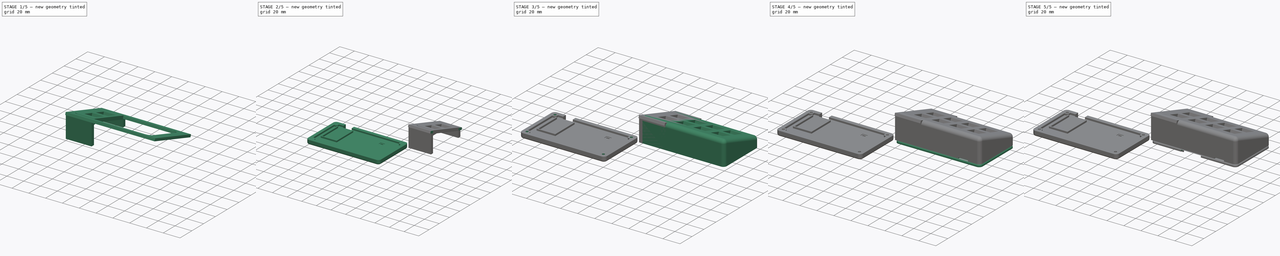
[diagram: build sequence overview — one tinted view per stage of 5, left to right]
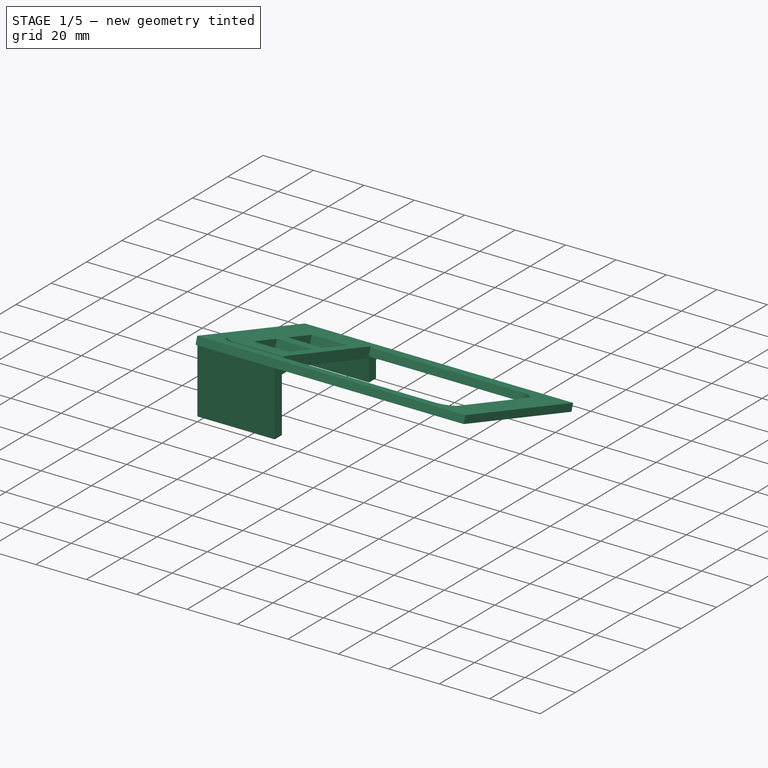
[diagram: stage 1 of 5 — iso view after this stage's code; geometry added in this stage tinted green]
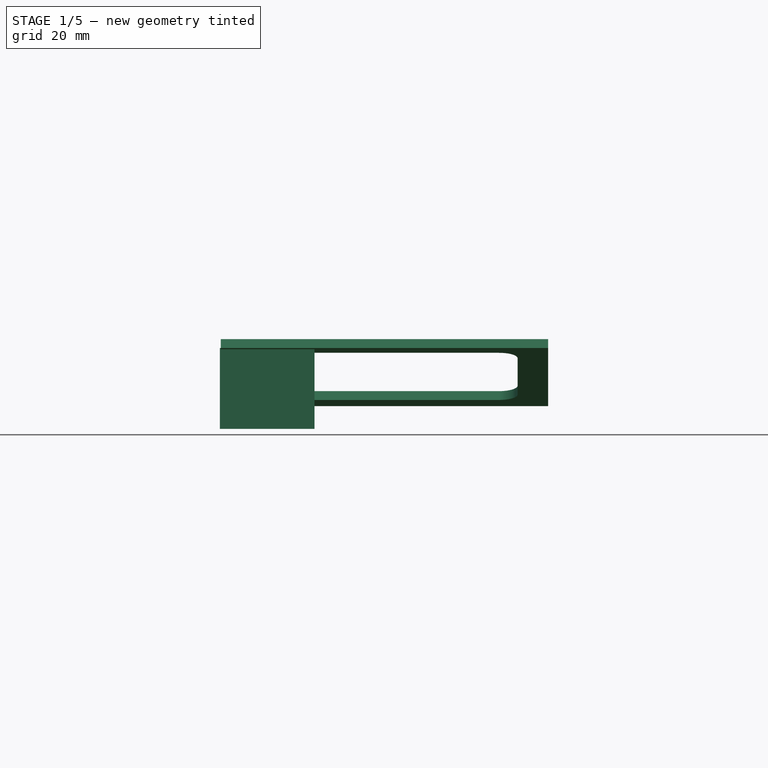
[diagram: stage 1 of 5 — front view after this stage's code; geometry added in this stage tinted green]
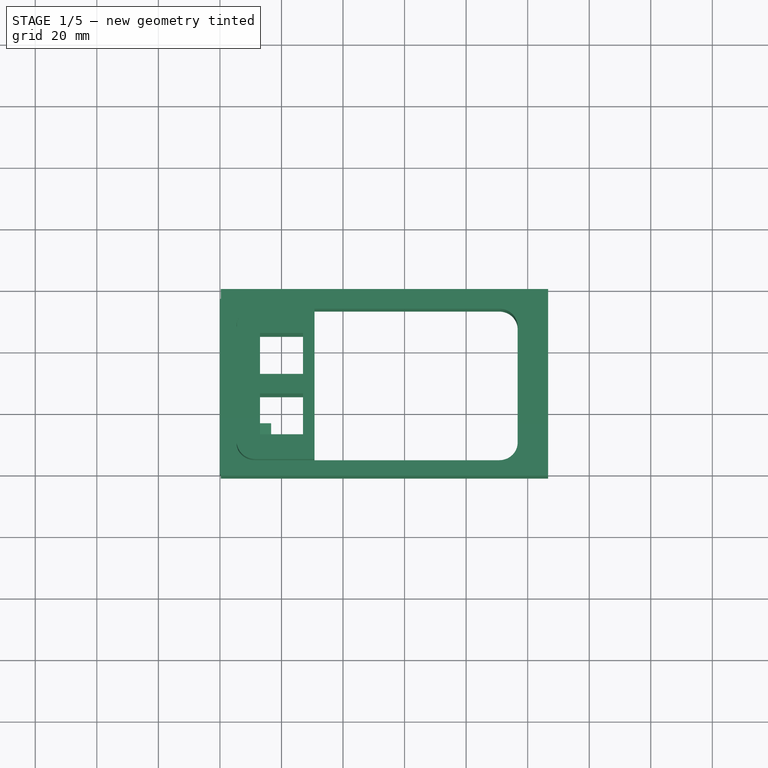
[diagram: stage 1 of 5 — top view after this stage's code; geometry added in this stage tinted green]
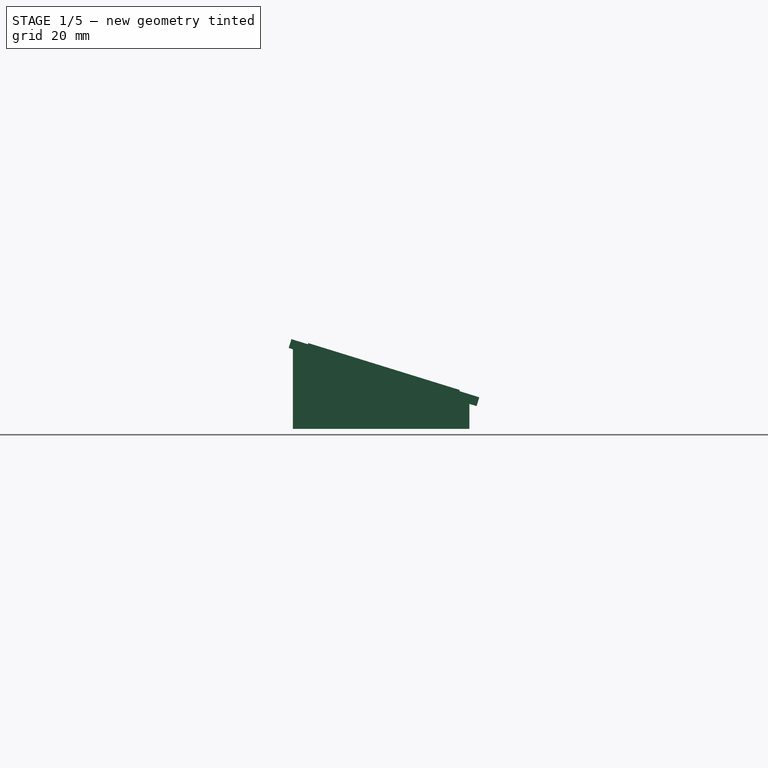
[diagram: stage 1 of 5 — right view after this stage's code; geometry added in this stage tinted green]
FCSTD DOCUMENT  (FreeCAD 1.0R39109 (Git))
Label: Macropad
License: All rights reserved
LicenseURL: http://en.wikipedia.org/wiki/All_rights_reserved
objects: Sketcher::SketchObject×37, PartDesign::Pocket×20, PartDesign::Pad×13, PartDesign::Body×7, PartDesign::Fillet×4, Part::Offset2D×1, App::DocumentObjectGroup×1
note: 193 computed .brp shape members not serialized (recipe doc carries the construction recipe); baked Part::Feature solids carry a one-line shape summary decoded from their .brp

FEATURE [PartDesign::Body] Body  label="Base"
  AllowCompound = false
  Group = -> [Sketch013,Sketch014,Pad004,Sketch015,Sketch016,Pocket007,Sketch017,Sketch018,Pocket008,Sketch019,Sketch022,Sketch023,Fillet003,Pocket009,Pocket010,Pad008,Sketch029,Pocket013,Sketch030,Pocket014]
  Origin = -> Origin
  Placement = pos=(0,0,-4) rot=(0,0,1;0rad)
  Tip = -> Pocket014
FEATURE [Sketcher::SketchObject] Sketch032
  ArcFitTolerance = 1e-06
  AttachmentSupport = -> [YZ_Plane005]
  FullyConstrained = false
  MakeInternals = false
  MapMode = 5
  Placement = pos=(0,0,0) rot=(0.57735,0.57735,0.57735;2.0944rad)
  sketch-geometry (4):
    g0: LineSegment StartX=0 StartY=0 StartZ=0 EndX=57.369 EndY=0 EndZ=0
    g1: LineSegment StartX=57.369 StartY=11.6653 StartZ=0 EndX=8e-16 EndY=29.4205 EndZ=0
    g2: LineSegment StartX=8e-16 StartY=29.4205 StartZ=0 EndX=0 EndY=0 EndZ=0
    g3: LineSegment StartX=57.369 StartY=11.6653 StartZ=0 EndX=57.369 EndY=0 EndZ=0
  constraints (8):
    c: Coincident(g0,g-1)
    c: PointOnObject(g0,g-1)
    c: PointOnObject(g1,g-2)
    c: Coincident(g2,g1)
    c: Coincident(g2,g0)
    c: Coincident(g3,g1)
    c: Coincident(g3,g0)
    c: Vertical(g3)
FEATURE [PartDesign::Pad] Pad011
  Direction = (1,0,0)
  Length = 100
  Length2 = 10
  Placement = pos=(0,0,0) rot=(1,1,1;2.0944rad)
  Profile = -> Sketch032
  ReferenceAxis = -> Sketch032 [N_Axis]
  Suppressed = false
  Type = 0
FEATURE [Sketcher::SketchObject] Sketch033
  ArcFitTolerance = 1e-06
  AttachmentOffset = pos=(0,0,-4) rot=(0,0,1;0rad)
  FullyConstrained = false
  MakeInternals = false
  MapMode = 5
  Placement = pos=(96,-4.44e-14,2.22e-14) rot=(0.57735,0.57735,0.57735;2.0944rad)
  sketch-geometry (4):
    g0: LineSegment StartX=4.00078 StartY=23.9941 StartZ=0 EndX=4.00078 EndY=0 EndZ=0
    g1: LineSegment StartX=4.00078 StartY=0 StartZ=0 EndX=53.3639 EndY=0 EndZ=0
    g2: LineSegment StartX=53.3639 StartY=0 StartZ=0 EndX=53.3639 EndY=8.72061 EndZ=0
    g3: LineSegment StartX=53.3639 StartY=8.72061 StartZ=0 EndX=4.00078 EndY=23.9941 EndZ=0
  constraints (8):
    c: PointOnObject(g0,g-1)
    c: Vertical(g0)
    c: Coincident(g0,g1)
    c: PointOnObject(g1,g-1)
    c: Coincident(g1,g2)
    c: Coincident(g2,g3)
    c: Coincident(g3,g0)
    c: Vertical(g2)
FEATURE [PartDesign::Pocket] Pocket015
  BaseFeature = -> Pad011
  Direction = (-1,1e-16,-1e-16)
  Length = 92
  Length2 = 5
  Placement = pos=(0,0,0) rot=(1,1,1;2.0944rad)
  Profile = -> Sketch033
  ReferenceAxis = -> Sketch033 [N_Axis]
  Suppressed = false
  Type = 0
FEATURE [Sketcher::SketchObject] Sketch034
  ArcFitTolerance = 1e-06
  AttachmentOffset = pos=(-5,27,0) rot=(0,0,1;1.5708rad)
  FullyConstrained = false
  MakeInternals = false
  MapMode = 5
  Placement = pos=(27,13.086,25.3705) rot=(-1,0,0;0.300143rad)
  sketch-geometry (32):
    g0: LineSegment StartX=-14 StartY=14 StartZ=0 EndX=-14 EndY=0 EndZ=0
    g1: LineSegment StartX=-14 StartY=0 StartZ=0 EndX=0 EndY=0 EndZ=0
    g2: LineSegment StartX=0 StartY=0 StartZ=0 EndX=0 EndY=14 EndZ=0
    g3: LineSegment StartX=0 StartY=14 StartZ=0 EndX=-14 EndY=14 EndZ=0
    g4: LineSegment StartX=-14 StartY=34.65 StartZ=0 EndX=-14 EndY=20.65 EndZ=0
    g5: LineSegment StartX=-14 StartY=20.65 StartZ=0 EndX=0 EndY=20.65 EndZ=0
    g6: LineSegment StartX=0 StartY=20.65 StartZ=0 EndX=0 EndY=34.65 EndZ=0
    g7: LineSegment StartX=0 StartY=34.65 StartZ=0 EndX=-14 EndY=34.65 EndZ=0
    g8: LineSegment StartX=6.65 StartY=14 StartZ=0 EndX=6.65 EndY=0 EndZ=0
    g9: LineSegment StartX=6.65 StartY=0 StartZ=0 EndX=20.65 EndY=0 EndZ=0
    g10: LineSegment StartX=20.65 StartY=0 StartZ=0 EndX=20.65 EndY=14 EndZ=0
    g11: LineSegment StartX=20.65 StartY=14 StartZ=0 EndX=6.65 EndY=14 EndZ=0
    g12: LineSegment StartX=6.65 StartY=34.65 StartZ=0 EndX=6.65 EndY=20.65 EndZ=0
    g13: LineSegment StartX=6.65 StartY=20.65 StartZ=0 EndX=20.65 EndY=20.65 EndZ=0
    g14: LineSegment StartX=20.65 StartY=20.65 StartZ=0 EndX=20.65 EndY=34.65 EndZ=0
    g15: LineSegment StartX=20.65 StartY=34.65 StartZ=0 EndX=6.65 EndY=34.65 EndZ=0
    g16: LineSegment StartX=27.3 StartY=14 StartZ=0 EndX=27.3 EndY=0 EndZ=0
    g17: LineSegment StartX=27.3 StartY=0 StartZ=0 EndX=41.3 EndY=0 EndZ=0
    g18: LineSegment StartX=41.3 StartY=0 StartZ=0 EndX=41.3 EndY=14 EndZ=0
    g19: LineSegment StartX=41.3 StartY=14 StartZ=0 EndX=27.3 EndY=14 EndZ=0
    g20: LineSegment StartX=27.3 StartY=34.65 StartZ=0 EndX=27.3 EndY=20.65 EndZ=0
    g21: LineSegment StartX=27.3 StartY=20.65 StartZ=0 EndX=41.3 EndY=20.65 EndZ=0
    g22: LineSegment StartX=41.3 StartY=20.65 StartZ=0 EndX=41.3 EndY=34.65 EndZ=0
    g23: LineSegment StartX=41.3 StartY=34.65 StartZ=0 EndX=27.3 EndY=34.65 EndZ=0
    g24: LineSegment StartX=47.95 StartY=14 StartZ=0 EndX=47.95 EndY=0 EndZ=0
    g25: LineSegment StartX=47.95 StartY=0 StartZ=0 EndX=61.95 EndY=0 EndZ=0
    g26: LineSegment StartX=61.95 StartY=0 StartZ=0 EndX=61.95 EndY=14 EndZ=0
    g27: LineSegment StartX=61.95 StartY=14 StartZ=0 EndX=47.95 EndY=14 EndZ=0
    g28: LineSegment StartX=47.95 StartY=34.65 StartZ=0 EndX=47.95 EndY=20.65 EndZ=0
    g29: LineSegment StartX=47.95 StartY=20.65 StartZ=0 EndX=61.95 EndY=20.65 EndZ=0
    g30: LineSegment StartX=61.95 StartY=20.65 StartZ=0 EndX=61.95 EndY=34.65 EndZ=0
    g31: LineSegment StartX=61.95 StartY=34.65 StartZ=0 EndX=47.95 EndY=34.65 EndZ=0
  constraints (64):
    c: Vertical(g0)
    c: Coincident(g0,g1)
    c: Horizontal(g1)
    c: Coincident(g1,g2)
    c: Vertical(g2)
    c: Coincident(g2,g3)
    c: Horizontal(g3)
    c: Coincident(g3,g0)
    c: Vertical(g4)
    c: Coincident(g4,g5)
    c: Horizontal(g5)
    c: Coincident(g5,g6)
    c: Vertical(g6)
    c: Coincident(g6,g7)
    c: Horizontal(g7)
    c: Coincident(g7,g4)
    c: Vertical(g8)
    c: Coincident(g8,g9)
    c: Horizontal(g9)
    c: Coincident(g9,g10)
    c: Vertical(g10)
    c: Coincident(g10,g11)
    c: Horizontal(g11)
    c: Coincident(g11,g8)
    c: Vertical(g12)
    c: Coincident(g12,g13)
    c: Horizontal(g13)
    c: Coincident(g13,g14)
    c: Vertical(g14)
    c: Coincident(g14,g15)
    c: Horizontal(g15)
    c: Coincident(g15,g12)
    c: Vertical(g16)
    c: Coincident(g16,g17)
    c: Horizontal(g17)
    c: Coincident(g17,g18)
    c: Vertical(g18)
    c: Coincident(g18,g19)
    c: Horizontal(g19)
    c: Coincident(g19,g16)
    c: Vertical(g20)
    c: Coincident(g20,g21)
    c: Horizontal(g21)
    c: Coincident(g21,g22)
    c: Vertical(g22)
    c: Coincident(g22,g23)
    c: Horizontal(g23)
    c: Coincident(g23,g20)
    c: Vertical(g24)
    c: Coincident(g24,g25)
    c: Horizontal(g25)
    c: Coincident(g25,g26)
    c: Vertical(g26)
    c: Coincident(g26,g27)
    c: Horizontal(g27)
    c: Coincident(g27,g24)
    c: Vertical(g28)
    c: Coincident(g28,g29)
    c: Horizontal(g29)
    c: Coincident(g29,g30)
    c: Vertical(g30)
    c: Coincident(g30,g31)
    c: Horizontal(g31)
    c: Coincident(g31,g28)
FEATURE [PartDesign::Pocket] Pocket016
  BaseFeature = -> Pocket015
  Direction = (0,-0.295657,-0.955294)
  Length = 5
  Length2 = 5
  Placement = pos=(0,0,0) rot=(1,1,1;2.0944rad)
  Profile = -> Sketch034
  ReferenceAxis = -> Sketch034 [N_Axis]
  Suppressed = false
  Type = 0
FEATURE [Sketcher::SketchObject] Sketch039
  ArcFitTolerance = 1e-06
  ExternalGeometry = -> [Pocket016]
  FullyConstrained = false
  MakeInternals = false
  MapMode = 5
  Placement = pos=(-5.48e-14,8.30951,26.8488) rot=(-0.147865,-0.147865,-0.977891;1.59315rad)
  sketch-geometry (20):
    g0: LineSegment StartX=-48.08 StartY=90.5 StartZ=0 EndX=-48.08 EndY=11.45 EndZ=0
    g1: LineSegment StartX=-42.08 StartY=5.45 StartZ=0 EndX=-2.57 EndY=5.45 EndZ=0
    g2: LineSegment StartX=3.43 StartY=11.45 StartZ=0 EndX=3.43 EndY=90.5 EndZ=0
    g3: LineSegment StartX=-2.57 StartY=96.5 StartZ=0 EndX=-42.08 EndY=96.5 EndZ=0
    g4: LineSegment StartX=-69.7564 StartY=111.082 StartZ=0 EndX=-69.7564 EndY=-15.8415 EndZ=0
    g5: LineSegment StartX=-69.7564 StartY=-15.8415 StartZ=0 EndX=27.7359 EndY=-15.8415 EndZ=0
    g6: LineSegment StartX=27.7359 StartY=-15.8415 StartZ=0 EndX=27.7359 EndY=111.082 EndZ=0
    g7: LineSegment StartX=27.7359 StartY=111.082 StartZ=0 EndX=-69.7564 EndY=111.082 EndZ=0
    g8: ArcOfCircle CenterX=-42.08 CenterY=90.5 CenterZ=0 NormalX=0 NormalY=0 NormalZ=1 AngleXU=0 Radius=6 StartAngle=1.5708 EndAngle=3.14159
    g9: GeomPoint [constr] X=-48.08 Y=96.5 Z=0
    g10: ArcOfCircle CenterX=-2.57 CenterY=90.5 CenterZ=0 NormalX=0 NormalY=0 NormalZ=1 AngleXU=0 Radius=6 StartAngle=-9e-16 EndAngle=1.5708
    g11: GeomPoint [constr] X=3.43 Y=96.5 Z=0
    g12: ArcOfCircle CenterX=-42.08 CenterY=11.45 CenterZ=0 NormalX=0 NormalY=0 NormalZ=1 AngleXU=0 Radius=6 StartAngle=3.14159 EndAngle=4.71239
    g13: GeomPoint [constr] X=-48.08 Y=5.45 Z=0
    g14: ArcOfCircle CenterX=-2.57 CenterY=11.45 CenterZ=0 NormalX=0 NormalY=0 NormalZ=1 AngleXU=0 Radius=6 StartAngle=4.71239 EndAngle=6.28319
    g15: GeomPoint [constr] X=3.43 Y=5.45 Z=0
    g16: LineSegment [constr] StartX=-42.08 StartY=11.45 StartZ=0 EndX=-39.65 EndY=13 EndZ=0
    g17: LineSegment [constr] StartX=-5 StartY=13 StartZ=0 EndX=-2.57 EndY=11.45 EndZ=0
    g18: LineSegment [constr] StartX=-5 StartY=88.95 StartZ=0 EndX=-2.57 EndY=90.5 EndZ=0
    g19: LineSegment [constr] StartX=-42.08 StartY=90.5 StartZ=0 EndX=-39.65 EndY=88.95 EndZ=0
  constraints (44):
    c: Vertical(g0)
    c: Vertical(g2)
    c: Horizontal(g1)
    c: Horizontal(g3)
    c: Coincident(g4,g5)
    c: Coincident(g5,g6)
    c: Coincident(g6,g7)
    c: Coincident(g7,g4)
    c: Vertical(g4)
    c: Vertical(g6)
    c: Horizontal(g5)
    c: Horizontal(g7)
    c: Distance(g11,g9) = 51.51
    c: Distance(g13,g9) = 91.05
    c: PointOnObject(g9,g3)
    c: PointOnObject(g9,g0)
    c: Tangent(g3,g8) = -1.5708
    c: Tangent(g0,g8) = -1.5708
    c: Radius(g8) = 6
    c: PointOnObject(g11,g3)
    c: PointOnObject(g11,g2)
    c: Tangent(g3,g10) = -1.5708
    c: Tangent(g2,g10) = -1.5708
    c: PointOnObject(g13,g0)
    c: PointOnObject(g13,g1)
    c: Tangent(g0,g12) = -1.5708
    c: Tangent(g1,g12) = -1.5708
    c: PointOnObject(g15,g2)
    c: PointOnObject(g15,g1)
    c: Tangent(g2,g14) = -1.5708
    c: Tangent(g1,g14) = -1.5708
    c: Equal(g8,g10)
    c: Equal(g10,g14)
    c: Equal(g14,g12)
    c: Coincident(g16,g12)
    c: Coincident(g16,g-10)
    c: Coincident(g17,g-8)
    c: Coincident(g17,g14)
    c: Coincident(g18,g-4)
    c: Coincident(g18,g10)
    c: Coincident(g19,g8)
    c: Coincident(g19,g-6)
    c: Equal(g16,g17)
    c: Equal(g17,g18)
FEATURE [PartDesign::Pocket] Pocket019
  BaseFeature = -> Pocket016
  Direction = (2e-15,-0.295657,-0.955294)
  Length = 3
  Length2 = 5
  Placement = pos=(0,0,0) rot=(1,1,1;2.0944rad)
  Profile = -> Sketch039
  ReferenceAxis = -> Sketch039 [N_Axis]
  Suppressed = false
  Type = 0
FEATURE [Sketcher::SketchObject] Sketch040
  ArcFitTolerance = 1e-06
  AttachmentOffset = pos=(0,0,-3) rot=(0,0,1;0rad)
  FullyConstrained = false
  MakeInternals = false
  MapMode = 5
  Placement = pos=(1.5,6.1,23.98) rot=(-0.147865,-0.147865,-0.977891;1.59315rad)
  expr: Constraints[4] = 51.51 + 0.3
  expr: Constraints[5] = 91.05 + 0.3
  sketch-geometry (16):
    g0: LineSegment StartX=-49.3414 StartY=89.2266 StartZ=0 EndX=-49.3414 EndY=9.87658 EndZ=0
    g1: LineSegment StartX=-43.3414 StartY=3.87658 StartZ=0 EndX=-3.5314 EndY=3.87658 EndZ=0
    g2: LineSegment StartX=2.4686 StartY=9.87658 StartZ=0 EndX=2.4686 EndY=89.2266 EndZ=0
    g3: LineSegment StartX=-3.5314 StartY=95.2266 StartZ=0 EndX=-43.3414 EndY=95.2266 EndZ=0
    g4: ArcOfCircle CenterX=-43.3414 CenterY=89.2266 CenterZ=0 NormalX=0 NormalY=0 NormalZ=1 AngleXU=0 Radius=6 StartAngle=1.5708 EndAngle=3.14159
    g5: GeomPoint [constr] X=-49.3414 Y=95.2266 Z=0
    g6: ArcOfCircle CenterX=-3.5314 CenterY=89.2266 CenterZ=0 NormalX=0 NormalY=0 NormalZ=1 AngleXU=0 Radius=6 StartAngle=1e-15 EndAngle=1.5708
    g7: GeomPoint [constr] X=2.4686 Y=95.2266 Z=0
    g8: ArcOfCircle CenterX=-43.3414 CenterY=9.87658 CenterZ=0 NormalX=0 NormalY=0 NormalZ=1 AngleXU=0 Radius=6 StartAngle=3.14159 EndAngle=4.71239
    g9: GeomPoint [constr] X=-49.3414 Y=3.87658 Z=0
    g10: ArcOfCircle CenterX=-3.5314 CenterY=9.87658 CenterZ=0 NormalX=0 NormalY=0 NormalZ=1 AngleXU=0 Radius=6 StartAngle=4.71239 EndAngle=6.28319
    g11: GeomPoint [constr] X=2.4686 Y=3.87658 Z=0
    g12: LineSegment StartX=-56.1055 StartY=105.124 StartZ=0 EndX=-56.1055 EndY=-1.2516 EndZ=0
    g13: LineSegment StartX=-56.1055 StartY=-1.2516 StartZ=0 EndX=7.79639 EndY=-1.2516 EndZ=0
    g14: LineSegment StartX=7.79639 StartY=-1.2516 StartZ=0 EndX=7.79639 EndY=105.124 EndZ=0
    g15: LineSegment StartX=7.79639 StartY=105.124 StartZ=0 EndX=-56.1055 EndY=105.124 EndZ=0
  constraints (34):
    c: Vertical(g0)
    c: Vertical(g2)
    c: Horizontal(g1)
    c: Horizontal(g3)
    c: Distance(g7,g5) = 51.81
    c: Distance(g9,g5) = 91.35
    c: PointOnObject(g5,g3)
    c: PointOnObject(g5,g0)
    c: Tangent(g3,g4) = -1.5708
    c: Tangent(g0,g4) = -1.5708
    c: PointOnObject(g7,g3)
    c: PointOnObject(g7,g2)
    c: Tangent(g3,g6) = -1.5708
    c: Tangent(g2,g6) = -1.5708
    c: PointOnObject(g9,g0)
    c: PointOnObject(g9,g1)
    c: Tangent(g0,g8) = -1.5708
    c: Tangent(g1,g8) = -1.5708
    c: PointOnObject(g11,g2)
    c: PointOnObject(g11,g1)
    c: Tangent(g2,g10) = -1.5708
    c: Tangent(g1,g10) = -1.5708
    c: Radius(g4) = 6
    c: Equal(g4,g6)
    c: Equal(g6,g8)
    c: Equal(g8,g10)
    c: Coincident(g12,g13)
    c: Coincident(g13,g14)
    c: Coincident(g14,g15)
    c: Coincident(g15,g12)
    c: Vertical(g12)
    c: Vertical(g14)
    c: Horizontal(g13)
    c: Horizontal(g15)
FEATURE [PartDesign::Pad] Pad012
  Direction = (-5e-16,0.295657,0.955294)
  Length = 3
  Length2 = 10
  Placement = pos=(1.5,6.1,23.98) rot=(-0.147865,-0.147865,-0.977891;1.59315rad)
  Profile = -> Sketch040
  ReferenceAxis = -> Sketch040 [N_Axis]
  Suppressed = false
  Type = 0
FEATURE [PartDesign::Body] Body006  label="TopBorder"
  AllowCompound = false
  Group = -> [Sketch040,Pad012,Sketch041,Pocket020]
  Origin = -> Origin006
  Placement = pos=(0,0,0) rot=(0,0,1;3.14159rad)
  Tip = -> Pocket020
FEATURE [Sketcher::SketchObject] Sketch042
  ArcFitTolerance = 1e-06
  AttachmentSupport = -> [Pocket019]
  FullyConstrained = false
  MakeInternals = false
  MapMode = 5
  Placement = pos=(-4.5e-15,8.30951,26.8488) rot=(-0.147865,-0.147865,-0.977891;1.59315rad)
  sketch-geometry (4):
    g0: LineSegment StartX=-67.2244 StartY=117.335 StartZ=0 EndX=-67.2244 EndY=30.7225 EndZ=0
    g1: LineSegment StartX=-67.2244 StartY=30.7225 StartZ=0 EndX=16.9521 EndY=30.7225 EndZ=0
    g2: LineSegment StartX=16.9521 StartY=30.7225 StartZ=0 EndX=16.9521 EndY=117.335 EndZ=0
    g3: LineSegment StartX=16.9521 StartY=117.335 StartZ=0 EndX=-67.2244 EndY=117.335 EndZ=0
  constraints (8):
    c: Coincident(g0,g1)
    c: Coincident(g1,g2)
    c: Coincident(g2,g3)
    c: Coincident(g3,g0)
    c: Vertical(g0)
    c: Vertical(g2)
    c: Horizontal(g1)
    c: Horizontal(g3)
FEATURE [PartDesign::Pocket] Pocket021
  BaseFeature = -> Pocket019
  Direction = (6e-16,-0.295657,-0.955294)
  Length = 5
  Length2 = 5
  Placement = pos=(0,0,0) rot=(1,1,1;2.0944rad)
  Profile = -> Sketch042
  ReferenceAxis = -> Sketch042 [N_Axis]
  Suppressed = false
  Type = 1
FEATURE [PartDesign::Body] Body005  label="TopBorderless"
  AllowCompound = false
  Group = -> [Sketch032,Pad011,Sketch033,Pocket015,Sketch034,Pocket016,Sketch039,Pocket019,Sketch042,Pocket021]
  Origin = -> Origin005
  Placement = pos=(0,0,0) rot=(0,0,1;3.14159rad)
  Tip = -> Pocket021
FEATURE [Sketcher::SketchObject] Sketch043
  ArcFitTolerance = 1e-06
  AttachmentSupport = -> [XY_Plane007]
  FullyConstrained = false
  MakeInternals = false
  MapMode = 5
  sketch-geometry (13):
    g0: LineSegment StartX=2.64104 StartY=17.0658 StartZ=0 EndX=2.64104 EndY=3.06582 EndZ=0
    g1: LineSegment StartX=2.64104 StartY=3.06582 StartZ=0 EndX=16.641 EndY=3.06582 EndZ=0
    g2: LineSegment StartX=16.641 StartY=3.06582 StartZ=0 EndX=16.641 EndY=17.0658 EndZ=0
    g3: LineSegment StartX=16.641 StartY=17.0658 StartZ=0 EndX=10.641 EndY=17.0658 EndZ=0
    g4: Circle CenterX=9.64104 CenterY=10.0658 CenterZ=0 NormalX=0 NormalY=0 NormalZ=1 AngleXU=0 Radius=4
    g5: LineSegment [constr] StartX=16.641 StartY=17.0658 StartZ=0 EndX=9.64104 EndY=10.0658 EndZ=0
    g6: LineSegment [constr] StartX=16.641 StartY=3.06582 StartZ=0 EndX=9.64104 EndY=10.0658 EndZ=0
    g7: LineSegment [constr] StartX=9.64104 StartY=10.0658 StartZ=0 EndX=9.64104 EndY=16.0658 EndZ=0
    g8: LineSegment StartX=8.64104 StartY=17.0658 StartZ=0 EndX=8.64104 EndY=16.0239 EndZ=0
    g9: LineSegment StartX=10.641 StartY=17.0658 StartZ=0 EndX=10.641 EndY=16.0239 EndZ=0
    g10: LineSegment [constr] StartX=9.64104 StartY=17.0658 StartZ=0 EndX=9.64104 EndY=16.0658 EndZ=0
    g11: LineSegment StartX=8.64104 StartY=16.0239 StartZ=0 EndX=10.641 EndY=16.0239 EndZ=0
    g12: LineSegment StartX=8.64104 StartY=17.0658 StartZ=0 EndX=2.64104 EndY=17.0658 EndZ=0
  constraints (23):
    c: Coincident(g0,g1)
    c: Coincident(g1,g2)
    c: Coincident(g2,g3)
    c: Coincident(g12,g0)
    c: Vertical(g0)
    c: Vertical(g2)
    c: Horizontal(g1)
    c: Horizontal(g3)
    c: Distance(g0,g2) = 14
    c: Distance(g1,g12) = 14
    c: Diameter(g4) = 8
    c: Coincident(g5,g2)
    c: Coincident(g6,g1)
    c: Coincident(g5,g6)
    c: Coincident(g5,g4)
    c: Vertical(g7)
    c: Coincident(g7,g4)
    c: PointOnObject(g8,g12)
    c: Coincident(g3,g9)
    c: PointOnObject(g12,g8)
    c: PointOnObject(g7,g10)
    c: PointOnObject(g9,g11)
    c: PointOnObject(g8,g11)
FEATURE [PartDesign::Pad] Pad013
  Direction = (0,0,1)
  Length = 4
  Length2 = 10
  Profile = -> Sketch043
  ReferenceAxis = -> Sketch043 [N_Axis]
  Suppressed = false
  Type = 0
FEATURE [PartDesign::Body] Body007  label="Adaptador"
  AllowCompound = false
  Group = -> [Sketch043,Pad013]
  Origin = -> Origin007
  Tip = -> Pad013
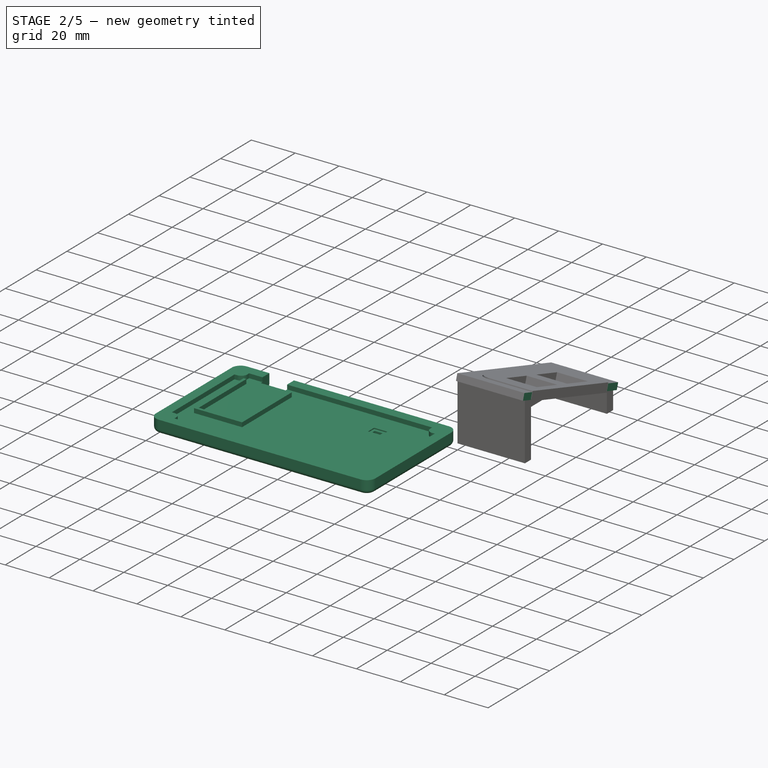
[diagram: stage 2 of 5 — iso view after this stage's code; geometry added in this stage tinted green]
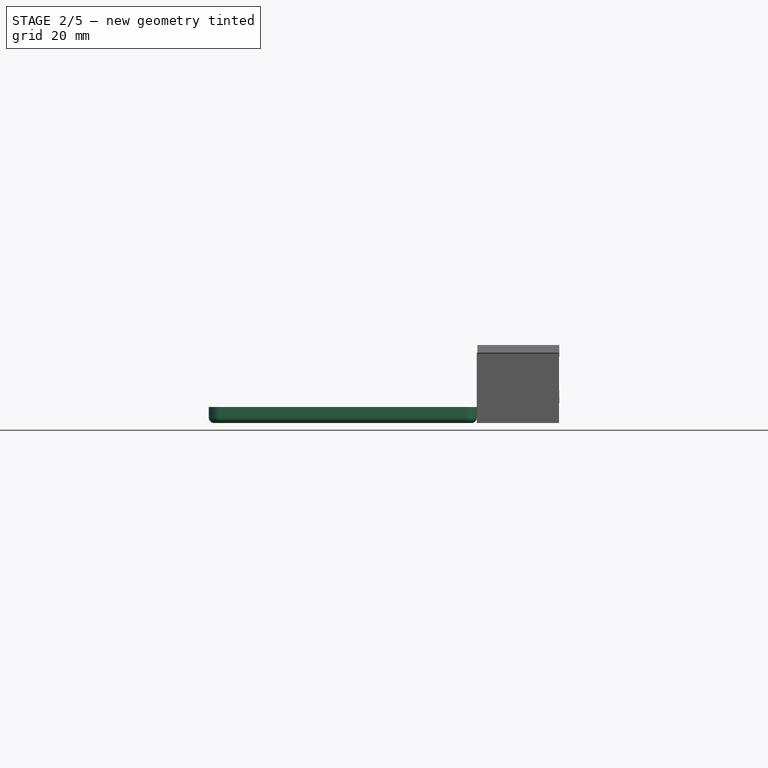
[diagram: stage 2 of 5 — front view after this stage's code; geometry added in this stage tinted green]
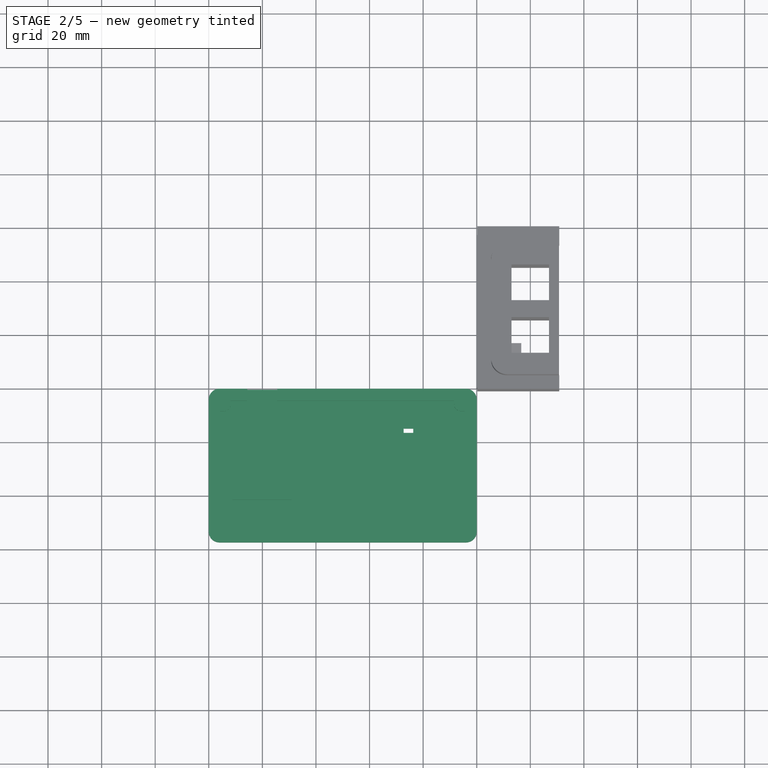
[diagram: stage 2 of 5 — top view after this stage's code; geometry added in this stage tinted green]
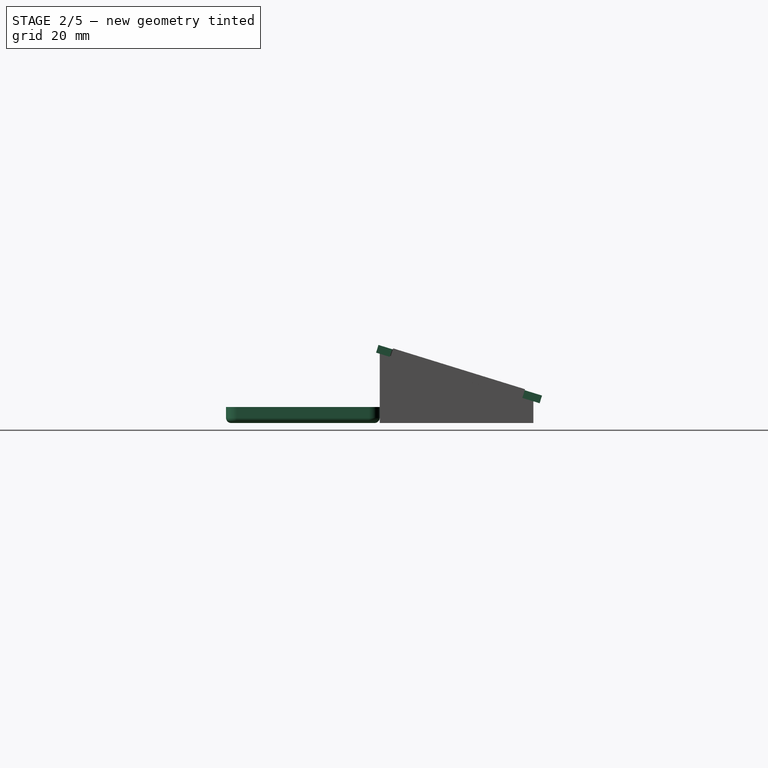
[diagram: stage 2 of 5 — right view after this stage's code; geometry added in this stage tinted green]
FEATURE [PartDesign::Body] Body003
  AllowCompound = false
  Group = -> [Sketch005,Sketch006,Pad001,Pocket002,Fillet002,Sketch007,Pad002,Sketch008,Pad003,Sketch009,Pocket003,Sketch010,Pocket004,Sketch011,Pocket005,Sketch012,Pocket006]
  Origin = -> Origin003
  Placement = pos=(-100,0,-3) rot=(1,0,0;3.14159rad)
  Tip = -> Pocket006
FEATURE [Sketcher::SketchObject] Sketch
  ArcFitTolerance = 1e-06
  AttachmentSupport = -> [Pocket001]
  ExternalGeometry = -> [Pocket001]
  FullyConstrained = false
  MakeInternals = false
  MapMode = 5
  Placement = pos=(0,0,0) rot=(0.707107,0.707107,0;3.14159rad)
  sketch-geometry (16):
    g0: LineSegment StartX=57.369 StartY=96 StartZ=0 EndX=57.369 EndY=4 EndZ=0
    g1: LineSegment StartX=53.3639 StartY=6 StartZ=0 EndX=53.3639 EndY=94 EndZ=0
    g2: LineSegment StartX=53.369 StartY=1.825e-13 StartZ=0 EndX=4 EndY=2.136e-13 EndZ=0
    g3: LineSegment StartX=4.00078 StartY=6 StartZ=0 EndX=4.00078 EndY=94 EndZ=0
    g4: ArcOfCircle CenterX=4 CenterY=96 CenterZ=0 NormalX=0 NormalY=0 NormalZ=1 AngleXU=0 Radius=4 StartAngle=1.5708 EndAngle=3.14159
    g5: ArcOfCircle CenterX=4 CenterY=4 CenterZ=0 NormalX=0 NormalY=0 NormalZ=1 AngleXU=0 Radius=4 StartAngle=3.14159 EndAngle=4.71239
    g6: ArcOfCircle CenterX=6.00078 CenterY=6 CenterZ=0 NormalX=0 NormalY=0 NormalZ=1 AngleXU=0 Radius=2 StartAngle=3.14159 EndAngle=4.71239
    g7: ArcOfCircle CenterX=6.00078 CenterY=94 CenterZ=0 NormalX=0 NormalY=0 NormalZ=1 AngleXU=0 Radius=2 StartAngle=1.5708 EndAngle=3.14159
    g8: LineSegment StartX=6.00078 StartY=96 StartZ=0 EndX=51.3639 EndY=96 EndZ=0
    g9: ArcOfCircle CenterX=51.3639 CenterY=94 CenterZ=0 NormalX=0 NormalY=0 NormalZ=1 AngleXU=0 Radius=2 StartAngle=-2.13e-14 EndAngle=1.5708
    g10: ArcOfCircle CenterX=51.3639 CenterY=6 CenterZ=0 NormalX=0 NormalY=0 NormalZ=1 AngleXU=0 Radius=2 StartAngle=4.71239 EndAngle=6.28319
    g11: ArcOfCircle CenterX=53.369 CenterY=4 CenterZ=0 NormalX=0 NormalY=0 NormalZ=1 AngleXU=0 Radius=4 StartAngle=4.71239 EndAngle=6.28319
    g12: ArcOfCircle CenterX=53.369 CenterY=96 CenterZ=0 NormalX=0 NormalY=0 NormalZ=1 AngleXU=0 Radius=4 StartAngle=0 EndAngle=1.5708
    g13: LineSegment StartX=4 StartY=100 StartZ=0 EndX=53.369 EndY=100 EndZ=0
    g14: LineSegment StartX=6.00078 StartY=4 StartZ=0 EndX=51.3639 EndY=4 EndZ=0
    g15: LineSegment StartX=2.323e-13 StartY=4 StartZ=0 EndX=2.323e-13 EndY=96 EndZ=0
  constraints (32):
    c: Coincident(g0,g-4)
    c: Coincident(g0,g-9)
    c: Coincident(g1,g-10)
    c: Coincident(g1,g-8)
    c: Coincident(g4,g-16)
    c: Coincident(g5,g-14)
    c: Coincident(g5,g2)
    c: Coincident(g6,g-12)
    c: Coincident(g6,g-12)
    c: Coincident(g6,g3)
    c: Coincident(g7,g-17)
    c: Coincident(g7,g-17)
    c: Coincident(g7,g3)
    c: Coincident(g8,g7)
    c: Coincident(g8,g-7)
    c: Coincident(g9,g-7)
    c: Coincident(g9,g8)
    c: Coincident(g10,g-10)
    c: Coincident(g10,g1)
    c: Coincident(g11,g-9)
    c: Coincident(g11,g0)
    c: Coincident(g11,g2)
    c: Coincident(g12,g-4)
    c: Coincident(g12,g0)
    c: Tangent(g13,g4) = 1.5708
    c: Coincident(g13,g12)
    c: Horizontal(g13)
    c: Tangent(g14,g6) = -1.5708
    c: Coincident(g14,g10)
    c: Tangent(g15,g5) = 1.5708
    c: Coincident(g15,g4)
    c: Vertical(g15)
FEATURE [Sketcher::SketchObject] Sketch013
  ArcFitTolerance = 1e-06
  AttachmentSupport = -> [XY_Plane]
  FullyConstrained = true
  MakeInternals = false
  MapMode = 5
  sketch-geometry (26):
    g0: LineSegment StartX=-4 StartY=0 StartZ=0 EndX=-96 EndY=0 EndZ=0
    g1: LineSegment StartX=-100 StartY=-4 StartZ=0 EndX=-100 EndY=-53.37 EndZ=0
    g2: LineSegment StartX=-96 StartY=-57.37 StartZ=0 EndX=-4 EndY=-57.37 EndZ=0
    g3: LineSegment StartX=0 StartY=-53.37 StartZ=0 EndX=0 EndY=-4 EndZ=0
    g4: ArcOfCircle CenterX=-4 CenterY=-4 CenterZ=0 NormalX=0 NormalY=0 NormalZ=1 AngleXU=0 Radius=4 StartAngle=0 EndAngle=1.5708
    g5: ArcOfCircle CenterX=-96 CenterY=-4 CenterZ=0 NormalX=0 NormalY=0 NormalZ=1 AngleXU=0 Radius=4 StartAngle=1.5708 EndAngle=3.14159
    g6: ArcOfCircle CenterX=-96 CenterY=-53.37 CenterZ=0 NormalX=0 NormalY=0 NormalZ=1 AngleXU=0 Radius=4 StartAngle=3.14159 EndAngle=4.71239
    g7: ArcOfCircle CenterX=-4 CenterY=-53.37 CenterZ=0 NormalX=0 NormalY=0 NormalZ=1 AngleXU=0 Radius=4 StartAngle=4.71239 EndAngle=6.28319
    g8: GeomPoint [constr] X=0 Y=0 Z=0
    g9: GeomPoint [constr] X=-100 Y=-57.37 Z=0
    g10: LineSegment [constr] StartX=0 StartY=0 StartZ=0 EndX=-4.5 EndY=0 EndZ=0
    g11: LineSegment [constr] StartX=-4.5 StartY=0 StartZ=0 EndX=-4.5 EndY=-4.5 EndZ=0
    g12: LineSegment [constr] StartX=-4.5 StartY=-4.5 StartZ=0 EndX=0 EndY=-4.5 EndZ=0
    g13: LineSegment [constr] StartX=0 StartY=-4.5 StartZ=0 EndX=0 EndY=0 EndZ=0
    g14: GeomPoint [constr] X=-4.5 Y=-4.5 Z=0
    g15: GeomPoint [constr] X=-95.7 Y=-53.07 Z=0
    g16: LineSegment [constr] StartX=-6.5 StartY=-4.5 StartZ=0 EndX=-93.7 EndY=-4.5 EndZ=0
    g17: LineSegment [constr] StartX=-95.7 StartY=-6.5 StartZ=0 EndX=-95.7 EndY=-51.07 EndZ=0
    g18: LineSegment [constr] StartX=-93.7 StartY=-53.07 StartZ=0 EndX=-6.5 EndY=-53.07 EndZ=0
    g19: LineSegment [constr] StartX=-4.5 StartY=-51.07 StartZ=0 EndX=-4.5 EndY=-6.5 EndZ=0
    g20: ArcOfCircle [constr] CenterX=-6.5 CenterY=-6.5 CenterZ=0 NormalX=0 NormalY=0 NormalZ=1 AngleXU=0 Radius=2 StartAngle=0 EndAngle=1.5708
    g21: ArcOfCircle [constr] CenterX=-93.7 CenterY=-6.5 CenterZ=0 NormalX=0 NormalY=0 NormalZ=1 AngleXU=0 Radius=2 StartAngle=1.5708 EndAngle=3.14159
    g22: ArcOfCircle [constr] CenterX=-93.7 CenterY=-51.07 CenterZ=0 NormalX=0 NormalY=0 NormalZ=1 AngleXU=0 Radius=2 StartAngle=3.14159 EndAngle=4.71239
    g23: ArcOfCircle [constr] CenterX=-6.5 CenterY=-51.07 CenterZ=0 NormalX=0 NormalY=0 NormalZ=1 AngleXU=0 Radius=2 StartAngle=4.71239 EndAngle=6.28319
    g24: GeomPoint [constr] X=-4.5 Y=-4.5 Z=0
    g25: GeomPoint [constr] X=-95.7 Y=-53.07 Z=0
  constraints (59):
    c: Tangent(g0,g4) = -1.5708
    c: Tangent(g0,g5) = -1.5708
    c: Tangent(g1,g5) = -1.5708
    c: Tangent(g1,g6) = -1.5708
    c: Tangent(g2,g6) = -1.5708
    c: Tangent(g2,g7) = -1.5708
    c: Tangent(g3,g7) = -1.5708
    c: Tangent(g3,g4) = -1.5708
    c: Horizontal(g0)
    c: Horizontal(g2)
    c: Vertical(g1)
    c: Vertical(g3)
    c: Equal(g4,g5)
    c: Equal(g5,g6)
    c: Equal(g6,g7)
    c: PointOnObject(g8,g0)
    c: PointOnObject(g8,g3)
    c: PointOnObject(g9,g1)
    c: PointOnObject(g9,g2)
    c: Distance(g1,g3) = 100
    c: Distance(g0,g2) = 57.37
    c: Radius(g5) = 4
    c: Coincident(g8,g-1)
    c: Coincident(g10,g11)
    c: Coincident(g11,g12)
    c: Coincident(g12,g13)
    c: Coincident(g13,g10)
    c: Horizontal(g10)
    c: Horizontal(g12)
    c: Vertical(g11)
    c: Vertical(g13)
    c: Distance(g11,g13) = 4.5
    c: Distance(g10,g12) = 4.5
    c: Coincident(g10,g8)
    c: Coincident(g14,g11)
    c: Tangent(g16,g20) = -1.5708
    c: Tangent(g16,g21) = -1.5708
    c: Tangent(g17,g21) = -1.5708
    c: Tangent(g17,g22) = -1.5708
    c: Tangent(g18,g22) = -1.5708
    c: Tangent(g18,g23) = -1.5708
    c: Tangent(g19,g23) = -1.5708
    c: Tangent(g19,g20) = -1.5708
    c: Horizontal(g16)
    c: Horizontal(g18)
    c: Vertical(g17)
    c: Vertical(g19)
    c: Equal(g20,g21)
    c: Equal(g21,g22)
    c: Equal(g22,g23)
    c: PointOnObject(g24,g16)
    c: PointOnObject(g24,g19)
    c: PointOnObject(g25,g17)
    c: PointOnObject(g25,g18)
    c: Distance(g17,g19) = 91.2
    c: Distance(g16,g18) = 48.57
    c: Radius(g21) = 2
    c: Coincident(g24,g11)
    c: Coincident(g25,g15)
FEATURE [Sketcher::SketchObject] Sketch014
  ArcFitTolerance = 1e-06
  AttachmentSupport = -> [XY_Plane]
  FullyConstrained = true
  MakeInternals = false
  MapMode = 5
  sketch-geometry (26):
    g0: LineSegment StartX=-4 StartY=0 StartZ=0 EndX=-96 EndY=0 EndZ=0
    g1: LineSegment StartX=-100 StartY=-4 StartZ=0 EndX=-100 EndY=-53.37 EndZ=0
    g2: LineSegment StartX=-96 StartY=-57.37 StartZ=0 EndX=-4 EndY=-57.37 EndZ=0
    g3: LineSegment StartX=0 StartY=-53.37 StartZ=0 EndX=0 EndY=-4 EndZ=0
    g4: ArcOfCircle CenterX=-4 CenterY=-4 CenterZ=0 NormalX=0 NormalY=0 NormalZ=1 AngleXU=0 Radius=4 StartAngle=0 EndAngle=1.5708
    g5: ArcOfCircle CenterX=-96 CenterY=-4 CenterZ=0 NormalX=0 NormalY=0 NormalZ=1 AngleXU=0 Radius=4 StartAngle=1.5708 EndAngle=3.14159
    g6: ArcOfCircle CenterX=-96 CenterY=-53.37 CenterZ=0 NormalX=0 NormalY=0 NormalZ=1 AngleXU=0 Radius=4 StartAngle=3.14159 EndAngle=4.71239
    g7: ArcOfCircle CenterX=-4 CenterY=-53.37 CenterZ=0 NormalX=0 NormalY=0 NormalZ=1 AngleXU=0 Radius=4 StartAngle=4.71239 EndAngle=6.28319
    g8: GeomPoint [constr] X=0 Y=0 Z=0
    g9: GeomPoint [constr] X=-100 Y=-57.37 Z=0
    g10: LineSegment [constr] StartX=0 StartY=0 StartZ=0 EndX=-4.5 EndY=0 EndZ=0
    g11: LineSegment [constr] StartX=-4.5 StartY=0 StartZ=0 EndX=-4.5 EndY=-4.5 EndZ=0
    g12: LineSegment [constr] StartX=-4.5 StartY=-4.5 StartZ=0 EndX=0 EndY=-4.5 EndZ=0
    g13: LineSegment [constr] StartX=0 StartY=-4.5 StartZ=0 EndX=0 EndY=0 EndZ=0
    g14: GeomPoint [constr] X=-4.5 Y=-4.5 Z=0
    g15: GeomPoint [constr] X=-95.7 Y=-53.07 Z=0
    g16: LineSegment StartX=-6.5 StartY=-4.5 StartZ=0 EndX=-93.7 EndY=-4.5 EndZ=0
    g17: LineSegment StartX=-95.7 StartY=-6.5 StartZ=0 EndX=-95.7 EndY=-51.07 EndZ=0
    g18: LineSegment StartX=-93.7 StartY=-53.07 StartZ=0 EndX=-6.5 EndY=-53.07 EndZ=0
    g19: LineSegment StartX=-4.5 StartY=-51.07 StartZ=0 EndX=-4.5 EndY=-6.5 EndZ=0
    g20: ArcOfCircle CenterX=-6.5 CenterY=-6.5 CenterZ=0 NormalX=0 NormalY=0 NormalZ=1 AngleXU=0 Radius=2 StartAngle=0 EndAngle=1.5708
    g21: ArcOfCircle CenterX=-93.7 CenterY=-6.5 CenterZ=0 NormalX=0 NormalY=0 NormalZ=1 AngleXU=0 Radius=2 StartAngle=1.5708 EndAngle=3.14159
    g22: ArcOfCircle CenterX=-93.7 CenterY=-51.07 CenterZ=0 NormalX=0 NormalY=0 NormalZ=1 AngleXU=0 Radius=2 StartAngle=3.14159 EndAngle=4.71239
    g23: ArcOfCircle CenterX=-6.5 CenterY=-51.07 CenterZ=0 NormalX=0 NormalY=0 NormalZ=1 AngleXU=0 Radius=2 StartAngle=4.71239 EndAngle=6.28319
    g24: GeomPoint [constr] X=-4.5 Y=-4.5 Z=0
    g25: GeomPoint [constr] X=-95.7 Y=-53.07 Z=0
  constraints (59):
    c: Tangent(g0,g4) = -1.5708
    c: Tangent(g0,g5) = -1.5708
    c: Tangent(g1,g5) = -1.5708
    c: Tangent(g1,g6) = -1.5708
    c: Tangent(g2,g6) = -1.5708
    c: Tangent(g2,g7) = -1.5708
    c: Tangent(g3,g7) = -1.5708
    c: Tangent(g3,g4) = -1.5708
    c: Horizontal(g0)
    c: Horizontal(g2)
    c: Vertical(g1)
    c: Vertical(g3)
    c: Equal(g4,g5)
    c: Equal(g5,g6)
    c: Equal(g6,g7)
    c: PointOnObject(g8,g0)
    c: PointOnObject(g8,g3)
    c: PointOnObject(g9,g1)
    c: PointOnObject(g9,g2)
    c: Distance(g1,g3) = 100
    c: Distance(g0,g2) = 57.37
    c: Radius(g5) = 4
    c: Coincident(g8,g-1)
    c: Coincident(g10,g11)
    c: Coincident(g11,g12)
    c: Coincident(g12,g13)
    c: Coincident(g13,g10)
    c: Horizontal(g10)
    c: Horizontal(g12)
    c: Vertical(g11)
    c: Vertical(g13)
    c: Distance(g11,g13) = 4.5
    c: Distance(g10,g12) = 4.5
    c: Coincident(g10,g8)
    c: Coincident(g14,g11)
    c: Tangent(g16,g20) = -1.5708
    c: Tangent(g16,g21) = -1.5708
    c: Tangent(g17,g21) = -1.5708
    c: Tangent(g17,g22) = -1.5708
    c: Tangent(g18,g22) = -1.5708
    c: Tangent(g18,g23) = -1.5708
    c: Tangent(g19,g23) = -1.5708
    c: Tangent(g19,g20) = -1.5708
    c: Horizontal(g16)
    c: Horizontal(g18)
    c: Vertical(g17)
    c: Vertical(g19)
    c: Equal(g20,g21)
    c: Equal(g21,g22)
    c: Equal(g22,g23)
    c: PointOnObject(g24,g16)
    c: PointOnObject(g24,g19)
    c: PointOnObject(g25,g17)
    c: PointOnObject(g25,g18)
    c: Distance(g17,g19) = 91.2
    c: Distance(g16,g18) = 48.57
    c: Radius(g21) = 2
    c: Coincident(g24,g11)
    c: Coincident(g25,g15)
FEATURE [PartDesign::Pad] Pad004
  Direction = (0,0,1)
  Length = 6
  Length2 = 10
  Profile = -> Sketch013
  ReferenceAxis = -> Sketch013 [N_Axis]
  Suppressed = false
  Type = 0
FEATURE [Sketcher::SketchObject] Sketch015
  ArcFitTolerance = 1e-06
  AttachmentSupport = -> [Pad004]
  FullyConstrained = false
  MakeInternals = false
  MapMode = 5
  Placement = pos=(0,0,6) rot=(0,0,1;0rad)
  sketch-geometry (16):
    g0: LineSegment StartX=-8.41 StartY=-4.5 StartZ=0 EndX=-91.79 EndY=-4.5 EndZ=0
    g1: LineSegment StartX=-95.7 StartY=-8.41 StartZ=0 EndX=-95.7 EndY=-49.1646 EndZ=0
    g2: LineSegment StartX=-4.5 StartY=-49.16 StartZ=0 EndX=-4.5 EndY=-8.41 EndZ=0
    g3: LineSegment StartX=-91.79 StartY=-53.07 StartZ=0 EndX=-8.41 EndY=-53.07 EndZ=0
    g4: ArcOfCircle CenterX=-94.4756 CenterY=-51.8502 CenterZ=0 NormalX=0 NormalY=0 NormalZ=1 AngleXU=0 Radius=2.68563 StartAngle=6.27955 EndAngle=7.85825
    g5: ArcOfCircle CenterX=-94.4774 CenterY=-5.72259 CenterZ=0 NormalX=0 NormalY=0 NormalZ=1 AngleXU=0 Radius=2.68744 StartAngle=4.7077 EndAngle=6.28787
    g6: ArcOfCircle CenterX=-5.75651 CenterY=-5.75651 CenterZ=0 NormalX=0 NormalY=0 NormalZ=1 AngleXU=0 Radius=2.6539 StartAngle=3.12407 EndAngle=4.72991
    g7: ArcOfCircle CenterX=-5.77602 CenterY=-51.794 CenterZ=0 NormalX=0 NormalY=0 NormalZ=1 AngleXU=0 Radius=2.63481 StartAngle=1.54574 EndAngle=3.16665
    g8: LineSegment StartX=-94.49 StartY=-8.41 StartZ=0 EndX=-95.7 EndY=-8.41 EndZ=0
    g9: LineSegment StartX=-91.79 StartY=-5.71 StartZ=0 EndX=-91.79 EndY=-4.5 EndZ=0
    g10: LineSegment StartX=-8.41 StartY=-4.5 StartZ=0 EndX=-8.41 EndY=-5.71 EndZ=0
    g11: LineSegment StartX=-5.71 StartY=-8.41 StartZ=0 EndX=-4.5 EndY=-8.41 EndZ=0
    g12: LineSegment StartX=-4.5 StartY=-49.16 StartZ=0 EndX=-5.71 EndY=-49.16 EndZ=0
    g13: LineSegment StartX=-8.41 StartY=-51.86 StartZ=0 EndX=-8.41 EndY=-53.07 EndZ=0
    g14: LineSegment StartX=-91.79 StartY=-51.86 StartZ=0 EndX=-91.79 EndY=-53.07 EndZ=0
    g15: LineSegment StartX=-95.7 StartY=-49.1646 StartZ=0 EndX=-94.4871 EndY=-49.1646 EndZ=0
  constraints (27):
    c: Horizontal(g0)
    c: Vertical(g1)
    c: Vertical(g2)
    c: Coincident(g8,g5)
    c: Coincident(g8,g1)
    c: Horizontal(g8)
    c: Coincident(g9,g5)
    c: Coincident(g9,g0)
    c: Vertical(g9)
    c: Coincident(g10,g0)
    c: Coincident(g10,g6)
    c: Vertical(g10)
    c: Coincident(g11,g6)
    c: Coincident(g11,g2)
    c: Horizontal(g11)
    c: Coincident(g12,g2)
    c: Coincident(g12,g7)
    c: Horizontal(g12)
    c: Coincident(g13,g7)
    c: Coincident(g13,g3)
    c: Vertical(g13)
    c: Coincident(g14,g4)
    c: Coincident(g14,g3)
    c: Vertical(g14)
    c: Coincident(g15,g1)
    c: Coincident(g15,g4)
    c: Horizontal(g15)
FEATURE [PartDesign::Pocket] Pocket007
  BaseFeature = -> Pad004
  Direction = (0,0,-1)
  Length = 2
  Length2 = 5
  Profile = -> Sketch015
  ReferenceAxis = -> Sketch015 [N_Axis]
  Suppressed = false
  Type = 0
FEATURE [Sketcher::SketchObject] Sketch016
  ArcFitTolerance = 1e-06
  AttachmentSupport = -> [Pocket007]
  FullyConstrained = false
  MakeInternals = false
  MapMode = 5
  Placement = pos=(0,0,4) rot=(0,0,1;0rad)
  sketch-geometry (40):
    g0: LineSegment [constr] StartX=-4 StartY=0 StartZ=0 EndX=-96 EndY=0 EndZ=0
    g1: LineSegment [constr] StartX=-100 StartY=-4 StartZ=0 EndX=-100 EndY=-53.37 EndZ=0
    g2: LineSegment [constr] StartX=-96 StartY=-57.37 StartZ=0 EndX=-4 EndY=-57.37 EndZ=0
    g3: LineSegment [constr] StartX=0 StartY=-53.37 StartZ=0 EndX=0 EndY=-4 EndZ=0
    g4: ArcOfCircle [constr] CenterX=-4 CenterY=-4 CenterZ=0 NormalX=0 NormalY=0 NormalZ=1 AngleXU=0 Radius=4 StartAngle=0 EndAngle=1.5708
    g5: ArcOfCircle [constr] CenterX=-96 CenterY=-4 CenterZ=0 NormalX=0 NormalY=0 NormalZ=1 AngleXU=0 Radius=4 StartAngle=1.5708 EndAngle=3.14159
    g6: ArcOfCircle [constr] CenterX=-96 CenterY=-53.37 CenterZ=0 NormalX=0 NormalY=0 NormalZ=1 AngleXU=0 Radius=4 StartAngle=3.14159 EndAngle=4.71239
    g7: ArcOfCircle [constr] CenterX=-4 CenterY=-53.37 CenterZ=0 NormalX=0 NormalY=0 NormalZ=1 AngleXU=0 Radius=4 StartAngle=4.71239 EndAngle=6.28319
    g8: GeomPoint [constr] X=0 Y=0 Z=0
    g9: GeomPoint [constr] X=-100 Y=-57.37 Z=0
    g10: LineSegment [constr] StartX=0 StartY=0 StartZ=0 EndX=-4.5 EndY=0 EndZ=0
    g11: LineSegment [constr] StartX=-4.5 StartY=0 StartZ=0 EndX=-4.5 EndY=-4.5 EndZ=0
    g12: LineSegment [constr] StartX=-4.5 StartY=-4.5 StartZ=0 EndX=0 EndY=-4.5 EndZ=0
    g13: LineSegment [constr] StartX=0 StartY=-4.5 StartZ=0 EndX=0 EndY=0 EndZ=0
    g14: GeomPoint [constr] X=-4.5 Y=-4.5 Z=0
    g15: GeomPoint [constr] X=-95.7 Y=-53.07 Z=0
    g16: LineSegment StartX=-6.5 StartY=-4.5 StartZ=0 EndX=-93.7 EndY=-4.5 EndZ=0
    g17: LineSegment StartX=-95.7 StartY=-6.5 StartZ=0 EndX=-95.7 EndY=-51.07 EndZ=0
    g18: LineSegment StartX=-93.7 StartY=-53.07 StartZ=0 EndX=-6.5 EndY=-53.07 EndZ=0
    g19: LineSegment StartX=-4.5 StartY=-51.07 StartZ=0 EndX=-4.5 EndY=-6.5 EndZ=0
    g20: ArcOfCircle CenterX=-6.5 CenterY=-6.5 CenterZ=0 NormalX=0 NormalY=0 NormalZ=1 AngleXU=0 Radius=2 StartAngle=0 EndAngle=1.5708
    g21: ArcOfCircle CenterX=-93.7 CenterY=-6.5 CenterZ=0 NormalX=0 NormalY=0 NormalZ=1 AngleXU=0 Radius=2 StartAngle=1.5708 EndAngle=3.14159
    g22: ArcOfCircle CenterX=-93.7 CenterY=-51.07 CenterZ=0 NormalX=0 NormalY=0 NormalZ=1 AngleXU=0 Radius=2 StartAngle=3.14159 EndAngle=4.71239
    g23: ArcOfCircle CenterX=-6.5 CenterY=-51.07 CenterZ=0 NormalX=0 NormalY=0 NormalZ=1 AngleXU=0 Radius=2 StartAngle=4.71239 EndAngle=6.28319
    g24: GeomPoint [constr] X=-4.5 Y=-4.5 Z=0
    g25: GeomPoint [constr] X=-95.7 Y=-53.07 Z=0
    g26: LineSegment [constr] StartX=-94.7 StartY=-5.5 StartZ=0 EndX=-98.9655 EndY=-5.5 EndZ=0
    g27: LineSegment [constr] StartX=-94.7 StartY=-5.5 StartZ=0 EndX=-94.7 EndY=-3.35997 EndZ=0
    g28: LineSegment [constr] StartX=-5.5 StartY=-52.07 StartZ=0 EndX=8.02887 EndY=-52.07 EndZ=0
    g29: LineSegment [constr] StartX=-5.5 StartY=-52.07 StartZ=0 EndX=-5.5 EndY=-55.3106 EndZ=0
    g30: LineSegment StartX=-5.5 StartY=-50.5852 StartZ=0 EndX=-5.5 EndY=-6.9848 EndZ=0
    g31: LineSegment StartX=-6.9848 StartY=-5.5 StartZ=0 EndX=-93.2152 EndY=-5.5 EndZ=0
    g32: LineSegment StartX=-94.7 StartY=-6.9848 StartZ=0 EndX=-94.7 EndY=-50.5852 EndZ=0
    g33: LineSegment StartX=-93.2152 StartY=-52.07 StartZ=0 EndX=-6.9848 EndY=-52.07 EndZ=0
    g34: ArcOfCircle CenterX=-6.9848 CenterY=-50.5852 CenterZ=0 NormalX=0 NormalY=0 NormalZ=1 AngleXU=0 Radius=1.4848 StartAngle=4.71239 EndAngle=6.28319
    g35: ArcOfCircle CenterX=-6.9848 CenterY=-6.9848 CenterZ=0 NormalX=0 NormalY=0 NormalZ=1 AngleXU=0 Radius=1.4848 StartAngle=0 EndAngle=1.5708
    g36: ArcOfCircle CenterX=-93.2152 CenterY=-6.9848 CenterZ=0 NormalX=0 NormalY=0 NormalZ=1 AngleXU=0 Radius=1.4848 StartAngle=1.5708 EndAngle=3.14159
    g37: ArcOfCircle CenterX=-93.2152 CenterY=-50.5852 CenterZ=0 NormalX=0 NormalY=0 NormalZ=1 AngleXU=0 Radius=1.4848 StartAngle=3.14159 EndAngle=4.71239
    g38: GeomPoint [constr] X=-5.5 Y=-52.07 Z=0
    g39: GeomPoint [constr] X=-94.7 Y=-5.5 Z=0
  constraints (82):
    c: Tangent(g0,g4) = -1.5708
    c: Tangent(g0,g5) = -1.5708
    c: Tangent(g1,g5) = -1.5708
    c: Tangent(g1,g6) = -1.5708
    c: Tangent(g2,g6) = -1.5708
    c: Tangent(g2,g7) = -1.5708
    c: Tangent(g3,g7) = -1.5708
    c: Tangent(g3,g4) = -1.5708
    c: Horizontal(g0)
    c: Horizontal(g2)
    c: Vertical(g1)
    c: Vertical(g3)
    c: Equal(g4,g5)
    c: Equal(g5,g6)
    c: Equal(g6,g7)
    c: PointOnObject(g8,g0)
    c: PointOnObject(g8,g3)
    c: PointOnObject(g9,g1)
    c: PointOnObject(g9,g2)
    c: Distance(g1,g3) = 100
    c: Distance(g0,g2) = 57.37
    c: Radius(g5) = 4
    c: Coincident(g8,g-1)
    c: Coincident(g10,g11)
    c: Coincident(g11,g12)
    c: Coincident(g12,g13)
    c: Coincident(g13,g10)
    c: Horizontal(g10)
    c: Horizontal(g12)
    c: Vertical(g11)
    c: Vertical(g13)
    c: Distance(g11,g13) = 4.5
    c: Distance(g10,g12) = 4.5
    c: Coincident(g10,g8)
    c: Coincident(g14,g11)
    c: Tangent(g16,g20) = -1.5708
    c: Tangent(g16,g21) = -1.5708
    c: Tangent(g17,g21) = -1.5708
    c: Tangent(g17,g22) = -1.5708
    c: Tangent(g18,g22) = -1.5708
    c: Tangent(g18,g23) = -1.5708
    c: Tangent(g19,g23) = -1.5708
    c: Tangent(g19,g20) = -1.5708
    c: Horizontal(g16)
    c: Horizontal(g18)
    c: Vertical(g17)
    c: Vertical(g19)
    c: Equal(g20,g21)
    c: Equal(g21,g22)
    c: Equal(g22,g23)
    c: PointOnObject(g24,g16)
    c: PointOnObject(g24,g19)
    c: PointOnObject(g25,g17)
    c: PointOnObject(g25,g18)
    c: Distance(g17,g19) = 91.2
    c: Distance(g16,g18) = 48.57
    c: Radius(g21) = 2
    c: Coincident(g24,g11)
    c: Coincident(g25,g15)
    c: Coincident(g27,g26)
    c: Coincident(g28,g29)
    c: Tangent(g30,g34) = -1.5708
    c: Tangent(g30,g35) = -1.5708
    c: Tangent(g31,g35) = -1.5708
    c: Tangent(g31,g36) = -1.5708
    c: Tangent(g32,g36) = -1.5708
    c: Tangent(g32,g37) = -1.5708
    c: Tangent(g33,g37) = -1.5708
    c: Tangent(g33,g34) = -1.5708
    c: Vertical(g30)
    c: Vertical(g32)
    c: Horizontal(g31)
    c: Horizontal(g33)
    c: Equal(g34,g35)
    c: Equal(g35,g36)
    c: Equal(g36,g37)
    c: PointOnObject(g38,g30)
    c: PointOnObject(g38,g33)
    c: PointOnObject(g39,g31)
    c: PointOnObject(g39,g32)
    c: Coincident(g38,g28)
    c: Coincident(g39,g26)
FEATURE [Sketcher::SketchObject] Sketch017
  ArcFitTolerance = 1e-06
  AttachmentSupport = -> [Pad004]
  FullyConstrained = false
  MakeInternals = false
  MapMode = 5
  Placement = pos=(0,0,6) rot=(0,0,1;0rad)
  sketch-geometry (40):
    g0: LineSegment StartX=-4 StartY=0 StartZ=0 EndX=-96 EndY=0 EndZ=0
    g1: LineSegment StartX=-100 StartY=-4 StartZ=0 EndX=-100 EndY=-53.37 EndZ=0
    g2: LineSegment StartX=-96 StartY=-57.37 StartZ=0 EndX=-4 EndY=-57.37 EndZ=0
    g3: LineSegment StartX=0 StartY=-53.37 StartZ=0 EndX=0 EndY=-4 EndZ=0
    g4: ArcOfCircle CenterX=-4 CenterY=-4 CenterZ=0 NormalX=0 NormalY=0 NormalZ=1 AngleXU=0 Radius=4 StartAngle=0 EndAngle=1.5708
    g5: ArcOfCircle CenterX=-96 CenterY=-4 CenterZ=0 NormalX=0 NormalY=0 NormalZ=1 AngleXU=0 Radius=4 StartAngle=1.5708 EndAngle=3.14159
    g6: ArcOfCircle CenterX=-96 CenterY=-53.37 CenterZ=0 NormalX=0 NormalY=0 NormalZ=1 AngleXU=0 Radius=4 StartAngle=3.14159 EndAngle=4.71239
    g7: ArcOfCircle CenterX=-4 CenterY=-53.37 CenterZ=0 NormalX=0 NormalY=0 NormalZ=1 AngleXU=0 Radius=4 StartAngle=4.71239 EndAngle=6.28319
    g8: GeomPoint [constr] X=0 Y=0 Z=0
    g9: GeomPoint [constr] X=-100 Y=-57.37 Z=0
    g10: LineSegment [constr] StartX=0 StartY=0 StartZ=0 EndX=-4.5 EndY=0 EndZ=0
    g11: LineSegment [constr] StartX=-4.5 StartY=0 StartZ=0 EndX=-4.5 EndY=-4.5 EndZ=0
    g12: LineSegment [constr] StartX=-4.5 StartY=-4.5 StartZ=0 EndX=0 EndY=-4.5 EndZ=0
    g13: LineSegment [constr] StartX=0 StartY=-4.5 StartZ=0 EndX=0 EndY=0 EndZ=0
    g14: GeomPoint [constr] X=-4.5 Y=-4.5 Z=0
    g15: GeomPoint [constr] X=-95.7 Y=-53.07 Z=0
    g16: LineSegment StartX=-6.5 StartY=-4.5 StartZ=0 EndX=-93.7 EndY=-4.5 EndZ=0
    g17: LineSegment StartX=-95.7 StartY=-6.5 StartZ=0 EndX=-95.7 EndY=-51.07 EndZ=0
    g18: LineSegment StartX=-93.7 StartY=-53.07 StartZ=0 EndX=-6.5 EndY=-53.07 EndZ=0
    g19: LineSegment StartX=-4.5 StartY=-51.07 StartZ=0 EndX=-4.5 EndY=-6.5 EndZ=0
    g20: ArcOfCircle CenterX=-6.5 CenterY=-6.5 CenterZ=0 NormalX=0 NormalY=0 NormalZ=1 AngleXU=0 Radius=2 StartAngle=0 EndAngle=1.5708
    g21: ArcOfCircle CenterX=-93.7 CenterY=-6.5 CenterZ=0 NormalX=0 NormalY=0 NormalZ=1 AngleXU=0 Radius=2 StartAngle=1.5708 EndAngle=3.14159
    g22: ArcOfCircle CenterX=-93.7 CenterY=-51.07 CenterZ=0 NormalX=0 NormalY=0 NormalZ=1 AngleXU=0 Radius=2 StartAngle=3.14159 EndAngle=4.71239
    g23: ArcOfCircle CenterX=-6.5 CenterY=-51.07 CenterZ=0 NormalX=0 NormalY=0 NormalZ=1 AngleXU=0 Radius=2 StartAngle=4.71239 EndAngle=6.28319
    g24: GeomPoint [constr] X=-4.5 Y=-4.5 Z=0
    g25: GeomPoint [constr] X=-95.7 Y=-53.07 Z=0
    g26: LineSegment [constr] StartX=-94.7 StartY=-5.5 StartZ=0 EndX=-98.9655 EndY=-5.5 EndZ=0
    g27: LineSegment [constr] StartX=-94.7 StartY=-5.5 StartZ=0 EndX=-94.7 EndY=-3.35997 EndZ=0
    g28: LineSegment [constr] StartX=-5.5 StartY=-52.07 StartZ=0 EndX=8.02887 EndY=-52.07 EndZ=0
    g29: LineSegment [constr] StartX=-5.5 StartY=-52.07 StartZ=0 EndX=-5.5 EndY=-55.3106 EndZ=0
    g30: LineSegment [constr] StartX=-5.5 StartY=-50.5852 StartZ=0 EndX=-5.5 EndY=-6.9848 EndZ=0
    g31: LineSegment [constr] StartX=-6.9848 StartY=-5.5 StartZ=0 EndX=-93.2152 EndY=-5.5 EndZ=0
    g32: LineSegment [constr] StartX=-94.7 StartY=-6.9848 StartZ=0 EndX=-94.7 EndY=-50.5852 EndZ=0
    g33: LineSegment [constr] StartX=-93.2152 StartY=-52.07 StartZ=0 EndX=-6.9848 EndY=-52.07 EndZ=0
    g34: ArcOfCircle [constr] CenterX=-6.9848 CenterY=-50.5852 CenterZ=0 NormalX=0 NormalY=0 NormalZ=1 AngleXU=0 Radius=1.4848 StartAngle=4.71239 EndAngle=6.28319
    g35: ArcOfCircle [constr] CenterX=-6.9848 CenterY=-6.9848 CenterZ=0 NormalX=0 NormalY=0 NormalZ=1 AngleXU=0 Radius=1.4848 StartAngle=0 EndAngle=1.5708
    g36: ArcOfCircle [constr] CenterX=-93.2152 CenterY=-6.9848 CenterZ=0 NormalX=0 NormalY=0 NormalZ=1 AngleXU=0 Radius=1.4848 StartAngle=1.5708 EndAngle=3.14159
    g37: ArcOfCircle [constr] CenterX=-93.2152 CenterY=-50.5852 CenterZ=0 NormalX=0 NormalY=0 NormalZ=1 AngleXU=0 Radius=1.4848 StartAngle=3.14159 EndAngle=4.71239
    g38: GeomPoint [constr] X=-5.5 Y=-52.07 Z=0
    g39: GeomPoint [constr] X=-94.7 Y=-5.5 Z=0
  constraints (82):
    c: Tangent(g0,g4) = -1.5708
    c: Tangent(g0,g5) = -1.5708
    c: Tangent(g1,g5) = -1.5708
    c: Tangent(g1,g6) = -1.5708
    c: Tangent(g2,g6) = -1.5708
    c: Tangent(g2,g7) = -1.5708
    c: Tangent(g3,g7) = -1.5708
    c: Tangent(g3,g4) = -1.5708
    c: Horizontal(g0)
    c: Horizontal(g2)
    c: Vertical(g1)
    c: Vertical(g3)
    c: Equal(g4,g5)
    c: Equal(g5,g6)
    c: Equal(g6,g7)
    c: PointOnObject(g8,g0)
    c: PointOnObject(g8,g3)
    c: PointOnObject(g9,g1)
    c: PointOnObject(g9,g2)
    c: Distance(g1,g3) = 100
    c: Distance(g0,g2) = 57.37
    c: Radius(g5) = 4
    c: Coincident(g8,g-1)
    c: Coincident(g10,g11)
    c: Coincident(g11,g12)
    c: Coincident(g12,g13)
    c: Coincident(g13,g10)
    c: Horizontal(g10)
    c: Horizontal(g12)
    c: Vertical(g11)
    c: Vertical(g13)
    c: Distance(g11,g13) = 4.5
    c: Distance(g10,g12) = 4.5
    c: Coincident(g10,g8)
    c: Coincident(g14,g11)
    c: Tangent(g16,g20) = -1.5708
    c: Tangent(g16,g21) = -1.5708
    c: Tangent(g17,g21) = -1.5708
    c: Tangent(g17,g22) = -1.5708
    c: Tangent(g18,g22) = -1.5708
    c: Tangent(g18,g23) = -1.5708
    c: Tangent(g19,g23) = -1.5708
    c: Tangent(g19,g20) = -1.5708
    c: Horizontal(g16)
    c: Horizontal(g18)
    c: Vertical(g17)
    c: Vertical(g19)
    c: Equal(g20,g21)
    c: Equal(g21,g22)
    c: Equal(g22,g23)
    c: PointOnObject(g24,g16)
    c: PointOnObject(g24,g19)
    c: PointOnObject(g25,g17)
    c: PointOnObject(g25,g18)
    c: Distance(g17,g19) = 91.2
    c: Distance(g16,g18) = 48.57
    c: Radius(g21) = 2
    c: Coincident(g24,g11)
    c: Coincident(g25,g15)
    c: Coincident(g27,g26)
    c: Coincident(g28,g29)
    c: Tangent(g30,g34) = -1.5708
    c: Tangent(g30,g35) = -1.5708
    c: Tangent(g31,g35) = -1.5708
    c: Tangent(g31,g36) = -1.5708
    c: Tangent(g32,g36) = -1.5708
    c: Tangent(g32,g37) = -1.5708
    c: Tangent(g33,g37) = -1.5708
    c: Tangent(g33,g34) = -1.5708
    c: Vertical(g30)
    c: Vertical(g32)
    c: Horizontal(g31)
    c: Horizontal(g33)
    c: Equal(g34,g35)
    c: Equal(g35,g36)
    c: Equal(g36,g37)
    c: PointOnObject(g38,g30)
    c: PointOnObject(g38,g33)
    c: PointOnObject(g39,g31)
    c: PointOnObject(g39,g32)
    c: Coincident(g38,g28)
    c: Coincident(g39,g26)
FEATURE [Sketcher::SketchObject] Sketch018
  ArcFitTolerance = 1e-06
  FullyConstrained = false
  MakeInternals = false
  MapMode = 5
  Placement = pos=(0,0,4) rot=(0,0,1;0rad)
  sketch-geometry (4):
    g0: LineSegment StartX=-28.4926 StartY=-13.5688 StartZ=0 EndX=-28.4926 EndY=-17.5688 EndZ=0
    g1: LineSegment StartX=-28.4926 StartY=-17.5688 StartZ=0 EndX=-22.4926 EndY=-17.5688 EndZ=0
    g2: LineSegment StartX=-22.4926 StartY=-17.5688 StartZ=0 EndX=-22.4926 EndY=-13.5688 EndZ=0
    g3: LineSegment StartX=-22.4926 StartY=-13.5688 StartZ=0 EndX=-28.4926 EndY=-13.5688 EndZ=0
  constraints (10):
    c: Coincident(g0,g1)
    c: Coincident(g1,g2)
    c: Coincident(g2,g3)
    c: Coincident(g3,g0)
    c: Vertical(g0)
    c: Vertical(g2)
    c: Horizontal(g1)
    c: Horizontal(g3)
    c: Distance(g0,g2) = 6
    c: Distance(g1,g3) = 4
FEATURE [PartDesign::Pocket] Pocket008
  BaseFeature = -> Pocket007
  Direction = (0,0,-1)
  Length = 0.5
  Length2 = 5
  Profile = -> Sketch018
  ReferenceAxis = -> Sketch018 [N_Axis]
  Suppressed = false
  Type = 0
FEATURE [PartDesign::Body] Body004  label="ProMicro"
  AllowCompound = false
  Group = -> [Sketch020,Pad006,Sketch021,Pad007]
  Origin = -> Origin004
  Placement = pos=(-18,-5,-2) rot=(0,0,1;0rad)
  Tip = -> Pad007
FEATURE [Sketcher::SketchObject] Sketch022
  ArcFitTolerance = 1e-06
  FullyConstrained = false
  MakeInternals = false
  MapMode = 5
  Placement = pos=(0,-5.5,0) rot=(1,0,0;1.5708rad)
  sketch-geometry (4):
    g0: LineSegment StartX=-85.6985 StartY=0.954352 StartZ=0 EndX=-74.4826 EndY=0.954352 EndZ=0
    g1: LineSegment StartX=-74.4826 StartY=0.954352 StartZ=0 EndX=-74.4826 EndY=6.46036 EndZ=0
    g2: LineSegment StartX=-74.4826 StartY=6.46036 StartZ=0 EndX=-85.6985 EndY=6.46036 EndZ=0
    g3: LineSegment StartX=-85.6985 StartY=6.46036 StartZ=0 EndX=-85.6985 EndY=0.954352 EndZ=0
  constraints (8):
    c: Horizontal(g0)
    c: Vertical(g1)
    c: Coincident(g1,g0)
    c: Horizontal(g2)
    c: Coincident(g2,g1)
    c: Coincident(g3,g2)
    c: Coincident(g3,g0)
    c: Vertical(g3)
FEATURE [Sketcher::SketchObject] Sketch023
  ArcFitTolerance = 1e-06
  FullyConstrained = false
  MakeInternals = false
  MapMode = 5
  Placement = pos=(0,0,1) rot=(0,0,1;0rad)
  sketch-geometry (10):
    g0: LineSegment StartX=-91.0159 StartY=-41.4486 StartZ=0 EndX=-69.13 EndY=-41.4486 EndZ=0
    g1: LineSegment StartX=-69.13 StartY=-41.4486 StartZ=0 EndX=-69.13 EndY=-9.14086 EndZ=0
    g2: LineSegment StartX=-91.0159 StartY=-9.14086 StartZ=0 EndX=-91.0159 EndY=-41.4486 EndZ=0
    g3: LineSegment StartX=-89.7652 StartY=-40.198 StartZ=0 EndX=-70.3806 EndY=-40.198 EndZ=0
    g4: LineSegment StartX=-70.3806 StartY=-40.198 StartZ=0 EndX=-70.3806 EndY=-9.14086 EndZ=0
    g5: LineSegment StartX=-89.7652 StartY=-9.14086 StartZ=0 EndX=-89.7652 EndY=-40.198 EndZ=0
    g6: LineSegment [constr] StartX=-91.0159 StartY=-41.4486 StartZ=0 EndX=-89.7652 EndY=-40.198 EndZ=0
    g7: LineSegment [constr] StartX=-69.13 StartY=-41.4486 StartZ=0 EndX=-70.3806 EndY=-40.198 EndZ=0
    g8: LineSegment StartX=-91.0159 StartY=-9.14086 StartZ=0 EndX=-89.7652 EndY=-9.14086 EndZ=0
    g9: LineSegment StartX=-70.3806 StartY=-9.14086 StartZ=0 EndX=-69.13 EndY=-9.14086 EndZ=0
  constraints (21):
    c: Coincident(g0,g1)
    c: Coincident(g2,g0)
    c: Horizontal(g0)
    c: Vertical(g1)
    c: Vertical(g2)
    c: Coincident(g3,g4)
    c: Coincident(g5,g3)
    c: Horizontal(g3)
    c: Vertical(g4)
    c: Vertical(g5)
    c: Coincident(g6,g0)
    c: Coincident(g6,g3)
    c: Coincident(g7,g1)
    c: Coincident(g7,g4)
    c: Perpendicular(g6,g7)
    c: Horizontal(g8)
    c: PointOnObject(g4,g9)
    c: Coincident(g9,g1)
    c: Coincident(g8,g2)
    c: Coincident(g8,g5)
    c: PointOnObject(g9,g4)
FEATURE [PartDesign::Fillet] Fillet003
  Base = -> Pocket008 [Face4]
  BaseFeature = -> Pocket008
  Radius = 2
  SupportTransform = false
  Suppressed = false
  UseAllEdges = false
FEATURE [PartDesign::Pocket] Pocket009
  BaseFeature = -> Fillet003
  Direction = (0,0,-1)
  Length = 5
  Length2 = 5
  Profile = -> Sketch019
  ReferenceAxis = -> Sketch019 [N_Axis]
  Suppressed = false
  Type = 0
FEATURE [PartDesign::Pocket] Pocket010
  BaseFeature = -> Pocket009
  Direction = (0,1,-2e-16)
  Length = 6
  Length2 = 5
  Profile = -> Sketch022
  ReferenceAxis = -> Sketch022 [N_Axis]
  Suppressed = false
  Type = 0
FEATURE [PartDesign::Pad] Pad008
  BaseFeature = -> Pocket010
  Direction = (0,0,1)
  Length = 5
  Length2 = 10
  Profile = -> Sketch023
  ReferenceAxis = -> Sketch023 [N_Axis]
  Suppressed = false
  Type = 0
FEATURE [Sketcher::SketchObject] Sketch041
  ArcFitTolerance = 1e-06
  AttachmentSupport = -> [Pad012]
  FullyConstrained = false
  MakeInternals = false
  MapMode = 5
  Placement = pos=(1.5,6.98697,26.8459) rot=(-0.147865,-0.147865,-0.977891;1.59315rad)
  sketch-geometry (4):
    g0: LineSegment StartX=-83.9567 StartY=112.757 StartZ=0 EndX=-83.9567 EndY=29.2908 EndZ=0
    g1: LineSegment StartX=-83.9567 StartY=29.2908 StartZ=0 EndX=39.099 EndY=29.2908 EndZ=0
    g2: LineSegment StartX=39.099 StartY=29.2908 StartZ=0 EndX=39.099 EndY=112.757 EndZ=0
    g3: LineSegment StartX=39.099 StartY=112.757 StartZ=0 EndX=-83.9567 EndY=112.757 EndZ=0
  constraints (8):
    c: Coincident(g0,g1)
    c: Coincident(g1,g2)
    c: Coincident(g2,g3)
    c: Coincident(g3,g0)
    c: Vertical(g0)
    c: Vertical(g2)
    c: Horizontal(g1)
    c: Horizontal(g3)
FEATURE [PartDesign::Pocket] Pocket020
  BaseFeature = -> Pad012
  Direction = (0,-0.295657,-0.955294)
  Length = 5
  Length2 = 5
  Placement = pos=(1.5,6.1,23.98) rot=(-0.147865,-0.147865,-0.977891;1.59315rad)
  Profile = -> Sketch041
  ReferenceAxis = -> Sketch041 [N_Axis]
  Suppressed = false
  Type = 0
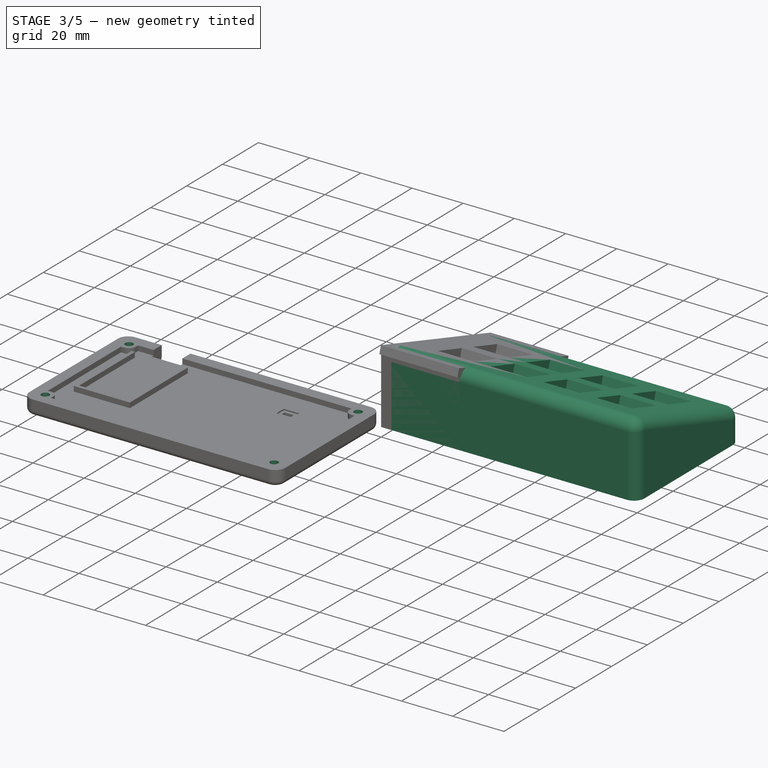
[diagram: stage 3 of 5 — iso view after this stage's code; geometry added in this stage tinted green]
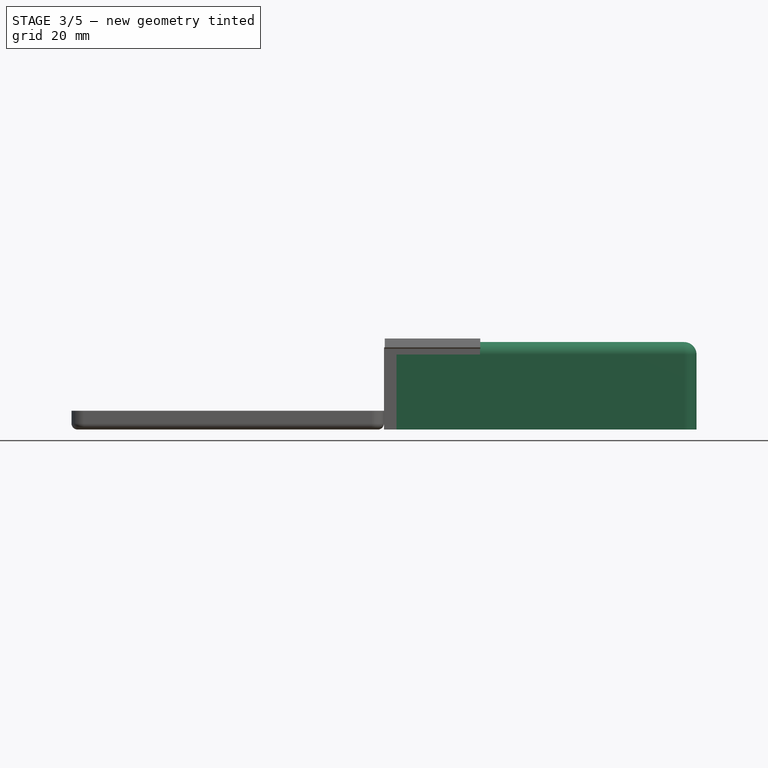
[diagram: stage 3 of 5 — front view after this stage's code; geometry added in this stage tinted green]
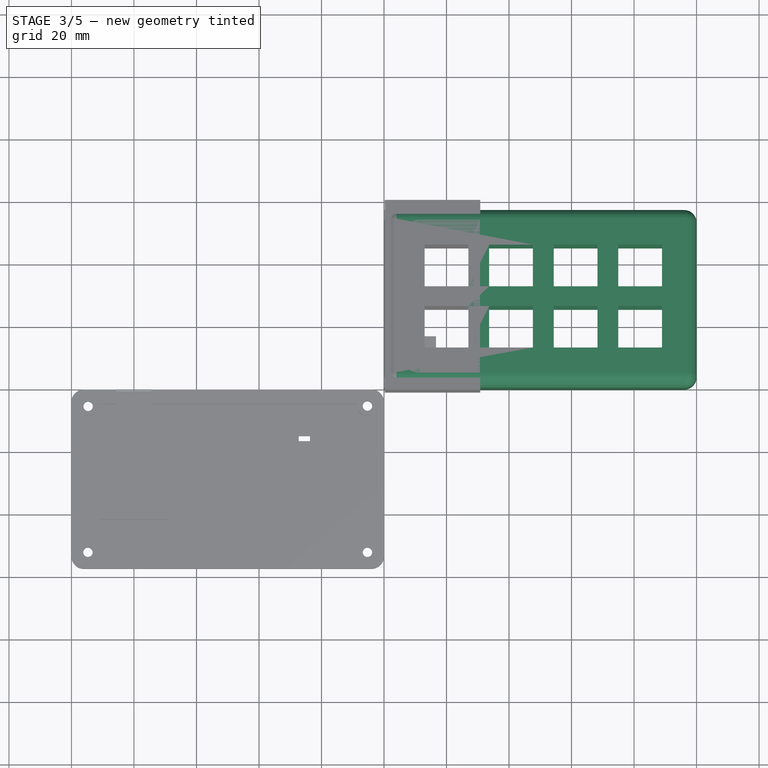
[diagram: stage 3 of 5 — top view after this stage's code; geometry added in this stage tinted green]
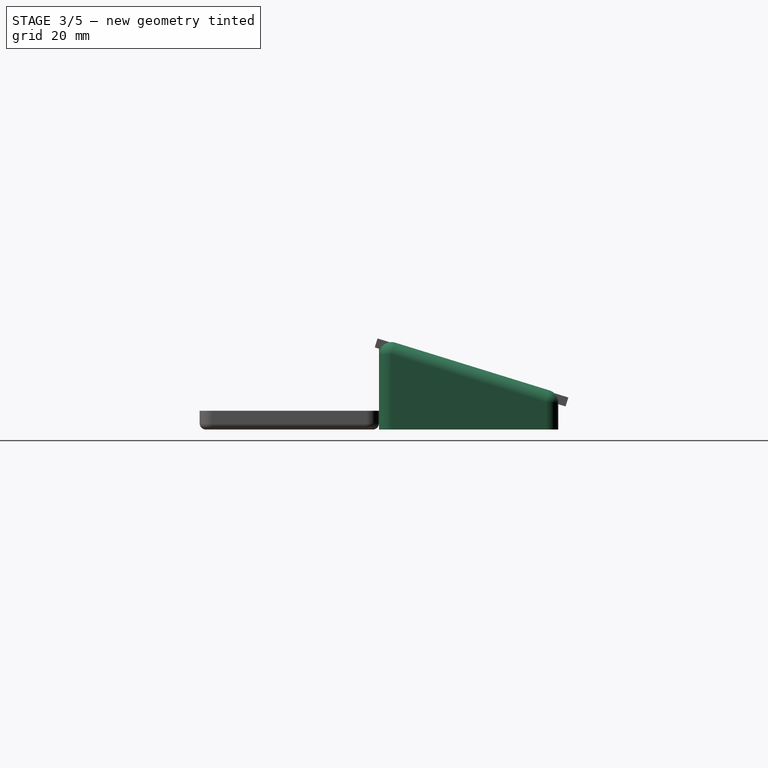
[diagram: stage 3 of 5 — right view after this stage's code; geometry added in this stage tinted green]
FEATURE [Sketcher::SketchObject] Sketch002
  ArcFitTolerance = 1e-06
  AttachmentSupport = -> [YZ_Plane002]
  FullyConstrained = false
  MakeInternals = false
  MapMode = 5
  Placement = pos=(0,0,0) rot=(0.57735,0.57735,0.57735;2.0944rad)
  sketch-geometry (4):
    g0: LineSegment StartX=0 StartY=0 StartZ=0 EndX=57.369 EndY=0 EndZ=0
    g1: LineSegment StartX=57.369 StartY=11.6653 StartZ=0 EndX=8e-16 EndY=29.4205 EndZ=0
    g2: LineSegment StartX=8e-16 StartY=29.4205 StartZ=0 EndX=0 EndY=0 EndZ=0
    g3: LineSegment StartX=57.369 StartY=11.6653 StartZ=0 EndX=57.369 EndY=0 EndZ=0
  constraints (8):
    c: Coincident(g0,g-1)
    c: PointOnObject(g0,g-1)
    c: PointOnObject(g1,g-2)
    c: Coincident(g2,g1)
    c: Coincident(g2,g0)
    c: Coincident(g3,g1)
    c: Coincident(g3,g0)
    c: Vertical(g3)
FEATURE [PartDesign::Pad] Pad
  Direction = (1,0,0)
  Length = 100
  Length2 = 10
  Placement = pos=(0,0,0) rot=(1,1,1;2.0944rad)
  Profile = -> Sketch002
  ReferenceAxis = -> Sketch002 [N_Axis]
  Suppressed = false
  Type = 0
FEATURE [PartDesign::Fillet] Fillet
  Base = -> Pad [Edge1,Edge2,Edge4,Edge3,Edge12,Edge11,Edge7,Edge6]
  BaseFeature = -> Pad
  Placement = pos=(0,0,0) rot=(1,1,1;2.0944rad)
  Radius = 4
  SupportTransform = false
  Suppressed = false
  UseAllEdges = false
FEATURE [Sketcher::SketchObject] Sketch003
  ArcFitTolerance = 1e-06
  AttachmentOffset = pos=(0,0,-4) rot=(0,0,1;0rad)
  FullyConstrained = false
  MakeInternals = false
  MapMode = 5
  Placement = pos=(96,-4.44e-14,2.22e-14) rot=(0.57735,0.57735,0.57735;2.0944rad)
  sketch-geometry (4):
    g0: LineSegment StartX=4.00078 StartY=23.9941 StartZ=0 EndX=4.00078 EndY=0 EndZ=0
    g1: LineSegment StartX=4.00078 StartY=0 StartZ=0 EndX=53.3639 EndY=0 EndZ=0
    g2: LineSegment StartX=53.3639 StartY=0 StartZ=0 EndX=53.3639 EndY=8.72061 EndZ=0
    g3: LineSegment StartX=53.3639 StartY=8.72061 StartZ=0 EndX=4.00078 EndY=23.9941 EndZ=0
  constraints (8):
    c: PointOnObject(g0,g-1)
    c: Vertical(g0)
    c: Coincident(g0,g1)
    c: PointOnObject(g1,g-1)
    c: Coincident(g1,g2)
    c: Coincident(g2,g3)
    c: Coincident(g3,g0)
    c: Vertical(g2)
FEATURE [PartDesign::Pocket] Pocket
  BaseFeature = -> Fillet
  Direction = (-1,1e-16,-1e-16)
  Length = 92
  Length2 = 5
  Placement = pos=(0,0,0) rot=(1,1,1;2.0944rad)
  Profile = -> Sketch003
  ReferenceAxis = -> Sketch003 [N_Axis]
  Suppressed = false
  Type = 0
FEATURE [PartDesign::Fillet] Fillet001
  Base = -> Pocket [Edge50,Edge49,Edge46,Edge45]
  BaseFeature = -> Pocket
  Placement = pos=(0,0,0) rot=(1,1,1;2.0944rad)
  Radius = 2
  SupportTransform = false
  Suppressed = false
  UseAllEdges = false
FEATURE [Sketcher::SketchObject] Sketch004
  ArcFitTolerance = 1e-06
  AttachmentOffset = pos=(-5,27,0) rot=(0,0,1;1.5708rad)
  AttachmentSupport = -> [Fillet001]
  FullyConstrained = false
  MakeInternals = false
  MapMode = 5
  Placement = pos=(27,13.086,25.3705) rot=(-1,0,0;0.300143rad)
  sketch-geometry (32):
    g0: LineSegment StartX=-14 StartY=14 StartZ=0 EndX=-14 EndY=0 EndZ=0
    g1: LineSegment StartX=-14 StartY=0 StartZ=0 EndX=0 EndY=0 EndZ=0
    g2: LineSegment StartX=0 StartY=0 StartZ=0 EndX=0 EndY=14 EndZ=0
    g3: LineSegment StartX=0 StartY=14 StartZ=0 EndX=-14 EndY=14 EndZ=0
    g4: LineSegment StartX=-14 StartY=34.65 StartZ=0 EndX=-14 EndY=20.65 EndZ=0
    g5: LineSegment StartX=-14 StartY=20.65 StartZ=0 EndX=0 EndY=20.65 EndZ=0
    g6: LineSegment StartX=0 StartY=20.65 StartZ=0 EndX=0 EndY=34.65 EndZ=0
    g7: LineSegment StartX=0 StartY=34.65 StartZ=0 EndX=-14 EndY=34.65 EndZ=0
    g8: LineSegment StartX=6.65 StartY=14 StartZ=0 EndX=6.65 EndY=0 EndZ=0
    g9: LineSegment StartX=6.65 StartY=0 StartZ=0 EndX=20.65 EndY=0 EndZ=0
    g10: LineSegment StartX=20.65 StartY=0 StartZ=0 EndX=20.65 EndY=14 EndZ=0
    g11: LineSegment StartX=20.65 StartY=14 StartZ=0 EndX=6.65 EndY=14 EndZ=0
    g12: LineSegment StartX=6.65 StartY=34.65 StartZ=0 EndX=6.65 EndY=20.65 EndZ=0
    g13: LineSegment StartX=6.65 StartY=20.65 StartZ=0 EndX=20.65 EndY=20.65 EndZ=0
    g14: LineSegment StartX=20.65 StartY=20.65 StartZ=0 EndX=20.65 EndY=34.65 EndZ=0
    g15: LineSegment StartX=20.65 StartY=34.65 StartZ=0 EndX=6.65 EndY=34.65 EndZ=0
    g16: LineSegment StartX=27.3 StartY=14 StartZ=0 EndX=27.3 EndY=0 EndZ=0
    g17: LineSegment StartX=27.3 StartY=0 StartZ=0 EndX=41.3 EndY=0 EndZ=0
    g18: LineSegment StartX=41.3 StartY=0 StartZ=0 EndX=41.3 EndY=14 EndZ=0
    g19: LineSegment StartX=41.3 StartY=14 StartZ=0 EndX=27.3 EndY=14 EndZ=0
    g20: LineSegment StartX=27.3 StartY=34.65 StartZ=0 EndX=27.3 EndY=20.65 EndZ=0
    g21: LineSegment StartX=27.3 StartY=20.65 StartZ=0 EndX=41.3 EndY=20.65 EndZ=0
    g22: LineSegment StartX=41.3 StartY=20.65 StartZ=0 EndX=41.3 EndY=34.65 EndZ=0
    g23: LineSegment StartX=41.3 StartY=34.65 StartZ=0 EndX=27.3 EndY=34.65 EndZ=0
    g24: LineSegment StartX=47.95 StartY=14 StartZ=0 EndX=47.95 EndY=0 EndZ=0
    g25: LineSegment StartX=47.95 StartY=0 StartZ=0 EndX=61.95 EndY=0 EndZ=0
    g26: LineSegment StartX=61.95 StartY=0 StartZ=0 EndX=61.95 EndY=14 EndZ=0
    g27: LineSegment StartX=61.95 StartY=14 StartZ=0 EndX=47.95 EndY=14 EndZ=0
    g28: LineSegment StartX=47.95 StartY=34.65 StartZ=0 EndX=47.95 EndY=20.65 EndZ=0
    g29: LineSegment StartX=47.95 StartY=20.65 StartZ=0 EndX=61.95 EndY=20.65 EndZ=0
    g30: LineSegment StartX=61.95 StartY=20.65 StartZ=0 EndX=61.95 EndY=34.65 EndZ=0
    g31: LineSegment StartX=61.95 StartY=34.65 StartZ=0 EndX=47.95 EndY=34.65 EndZ=0
  constraints (64):
    c: Vertical(g0)
    c: Coincident(g0,g1)
    c: Horizontal(g1)
    c: Coincident(g1,g2)
    c: Vertical(g2)
    c: Coincident(g2,g3)
    c: Horizontal(g3)
    c: Coincident(g3,g0)
    c: Vertical(g4)
    c: Coincident(g4,g5)
    c: Horizontal(g5)
    c: Coincident(g5,g6)
    c: Vertical(g6)
    c: Coincident(g6,g7)
    c: Horizontal(g7)
    c: Coincident(g7,g4)
    c: Vertical(g8)
    c: Coincident(g8,g9)
    c: Horizontal(g9)
    c: Coincident(g9,g10)
    c: Vertical(g10)
    c: Coincident(g10,g11)
    c: Horizontal(g11)
    c: Coincident(g11,g8)
    c: Vertical(g12)
    c: Coincident(g12,g13)
    c: Horizontal(g13)
    c: Coincident(g13,g14)
    c: Vertical(g14)
    c: Coincident(g14,g15)
    c: Horizontal(g15)
    c: Coincident(g15,g12)
    c: Vertical(g16)
    c: Coincident(g16,g17)
    c: Horizontal(g17)
    c: Coincident(g17,g18)
    c: Vertical(g18)
    c: Coincident(g18,g19)
    c: Horizontal(g19)
    c: Coincident(g19,g16)
    c: Vertical(g20)
    c: Coincident(g20,g21)
    c: Horizontal(g21)
    c: Coincident(g21,g22)
    c: Vertical(g22)
    c: Coincident(g22,g23)
    c: Horizontal(g23)
    c: Coincident(g23,g20)
    c: Vertical(g24)
    c: Coincident(g24,g25)
    c: Horizontal(g25)
    c: Coincident(g25,g26)
    c: Vertical(g26)
    c: Coincident(g26,g27)
    c: Horizontal(g27)
    c: Coincident(g27,g24)
    c: Vertical(g28)
    c: Coincident(g28,g29)
    c: Horizontal(g29)
    c: Coincident(g29,g30)
    c: Vertical(g30)
    c: Coincident(g30,g31)
    c: Horizontal(g31)
    c: Coincident(g31,g28)
FEATURE [PartDesign::Pocket] Pocket001
  BaseFeature = -> Fillet001
  Direction = (0,-0.295657,-0.955294)
  Length = 5
  Length2 = 5
  Placement = pos=(0,0,0) rot=(1,1,1;2.0944rad)
  Profile = -> Sketch004
  ReferenceAxis = -> Sketch004 [N_Axis]
  Suppressed = false
  Type = 0
FEATURE [PartDesign::Body] Body002  label="Top"
  AllowCompound = false
  Group = -> [Sketch002,Pad,Fillet,Sketch003,Pocket,Fillet001,Sketch004,Pocket001,Sketch,Sketch024,Pocket011,Sketch025,Pad009,Sketch026,Pad010,Sketch028,Pocket012]
  Origin = -> Origin002
  Placement = pos=(0,0,0) rot=(0,0,1;3.14159rad)
  Tip = -> Pocket012
FEATURE [Sketcher::SketchObject] Sketch029
  ArcFitTolerance = 1e-06
  AttachmentSupport = -> [XY_Plane]
  FullyConstrained = false
  MakeInternals = false
  MapMode = 5
  sketch-geometry (4):
    g0: Circle CenterX=-94.7102 CenterY=-52.0738 CenterZ=0 NormalX=0 NormalY=0 NormalZ=1 AngleXU=0 Radius=1.5
    g1: Circle CenterX=-94.6619 CenterY=-5.3835 CenterZ=0 NormalX=0 NormalY=0 NormalZ=1 AngleXU=0 Radius=1.5
    g2: Circle CenterX=-5.29478 CenterY=-5.29486 CenterZ=0 NormalX=0 NormalY=0 NormalZ=1 AngleXU=0 Radius=1.5
    g3: Circle CenterX=-5.29451 CenterY=-52.0785 CenterZ=0 NormalX=0 NormalY=0 NormalZ=1 AngleXU=0 Radius=1.5
  constraints (4):
    c: Diameter(g0) = 3
    c: Diameter(g1) = 3
    c: Diameter(g2) = 3
    c: Diameter(g3) = 3
FEATURE [PartDesign::Pocket] Pocket013
  BaseFeature = -> Pad008
  Direction = (0,0,-1)
  Length = 5
  Length2 = 5
  Profile = -> Sketch029
  ReferenceAxis = -> Sketch029 [N_Axis]
  Reversed = true
  Suppressed = false
  Type = 1
FEATURE [Sketcher::SketchObject] Sketch030
  ArcFitTolerance = 1e-06
  AttachmentSupport = -> [Pocket013]
  ExternalGeometry = -> [Pocket013]
  FullyConstrained = true
  MakeInternals = false
  MapMode = 5
  Placement = pos=(0,0,0) rot=(1,0,0;3.14159rad)
  sketch-geometry (4):
    g0: Circle CenterX=-5.29451 CenterY=52.0785 CenterZ=0 NormalX=0 NormalY=0 NormalZ=1 AngleXU=0 Radius=2.5
    g1: Circle CenterX=-5.29478 CenterY=5.29486 CenterZ=0 NormalX=0 NormalY=0 NormalZ=1 AngleXU=0 Radius=2.5
    g2: Circle CenterX=-94.6619 CenterY=5.3835 CenterZ=0 NormalX=0 NormalY=0 NormalZ=1 AngleXU=0 Radius=2.5
    g3: Circle CenterX=-94.7102 CenterY=52.0738 CenterZ=0 NormalX=0 NormalY=0 NormalZ=1 AngleXU=0 Radius=2.5
  constraints (8):
    c: Diameter(g0) = 5
    c: Coincident(g0,g-3)
    c: Diameter(g1) = 5
    c: Coincident(g1,g-4)
    c: Diameter(g2) = 5
    c: Coincident(g2,g-5)
    c: Diameter(g3) = 5
    c: Coincident(g3,g-6)
FEATURE [PartDesign::Pocket] Pocket014
  BaseFeature = -> Pocket013
  Direction = (0,0,1)
  Length = 3
  Length2 = 5
  Profile = -> Sketch030
  ReferenceAxis = -> Sketch030 [N_Axis]
  Suppressed = false
  Type = 0
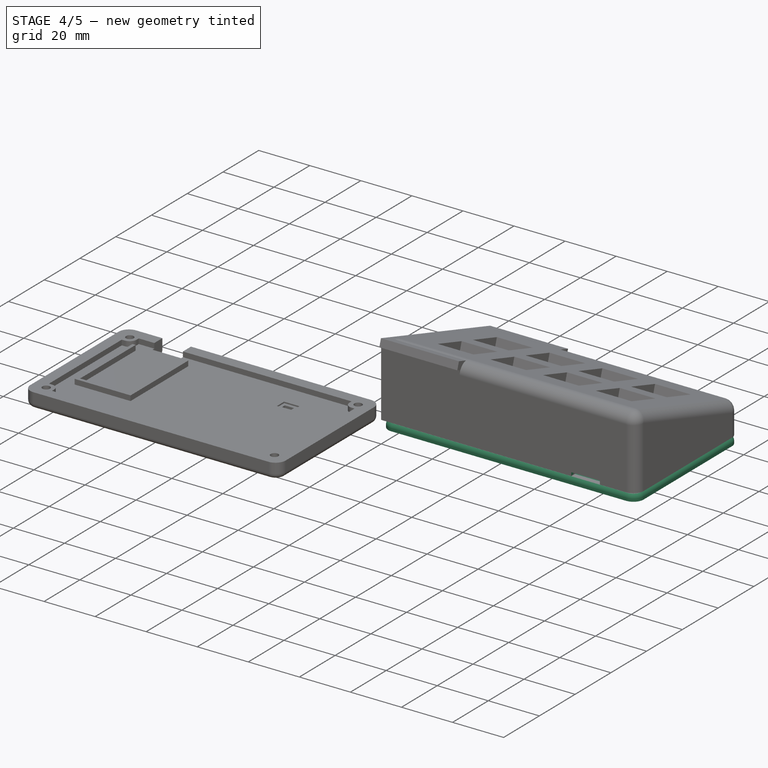
[diagram: stage 4 of 5 — iso view after this stage's code; geometry added in this stage tinted green]
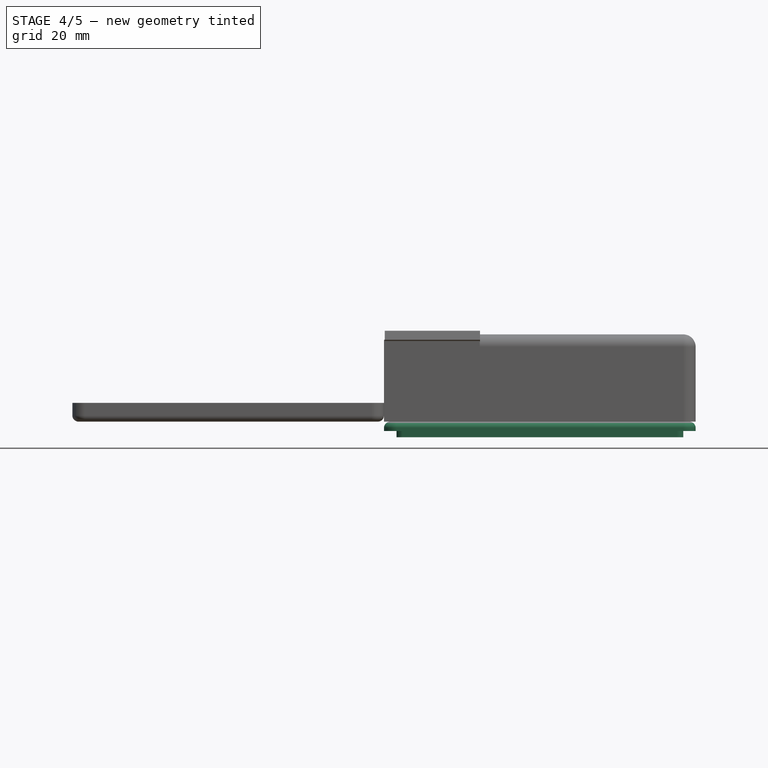
[diagram: stage 4 of 5 — front view after this stage's code; geometry added in this stage tinted green]
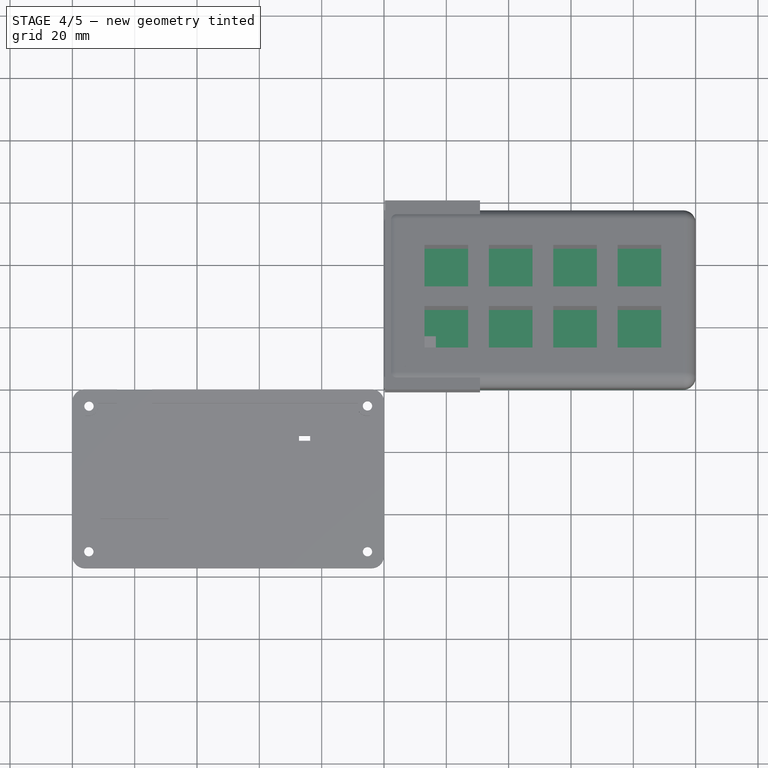
[diagram: stage 4 of 5 — top view after this stage's code; geometry added in this stage tinted green]
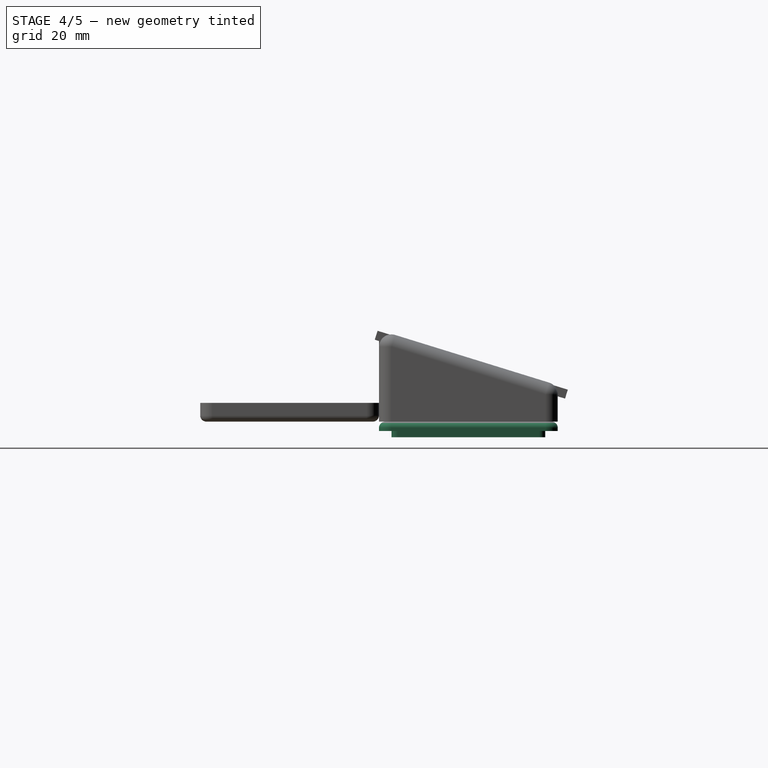
[diagram: stage 4 of 5 — right view after this stage's code; geometry added in this stage tinted green]
FEATURE [Sketcher::SketchObject] Sketch005
  ArcFitTolerance = 1e-06
  FullyConstrained = false
  MakeInternals = false
  MapMode = 5
  Placement = pos=(0,0,0) rot=(0.707107,0.707107,0;3.14159rad)
  sketch-geometry (16):
    g0: LineSegment StartX=57.369 StartY=96 StartZ=0 EndX=57.369 EndY=4 EndZ=0
    g1: LineSegment StartX=53.369 StartY=-1.15e-14 StartZ=0 EndX=4 EndY=0 EndZ=0
    g2: LineSegment StartX=2.398e-13 StartY=4 StartZ=0 EndX=0 EndY=96 EndZ=0
    g3: LineSegment StartX=4 StartY=100 StartZ=0 EndX=53.369 EndY=100 EndZ=0
    g4: LineSegment [constr] StartX=53.3639 StartY=94 StartZ=0 EndX=53.3639 EndY=6 EndZ=0
    g5: LineSegment [constr] StartX=51.3639 StartY=4 StartZ=0 EndX=6.00078 EndY=4 EndZ=0
    g6: LineSegment [constr] StartX=4.00078 StartY=6 StartZ=0 EndX=4.00078 EndY=94 EndZ=0
    g7: LineSegment [constr] StartX=6.00078 StartY=96 StartZ=0 EndX=51.3639 EndY=96 EndZ=0
    g8: ArcOfCircle CenterX=53.369 CenterY=96 CenterZ=0 NormalX=0 NormalY=0 NormalZ=1 AngleXU=0 Radius=4 StartAngle=0 EndAngle=1.5708
    g9: ArcOfCircle [constr] CenterX=51.3639 CenterY=94 CenterZ=0 NormalX=0 NormalY=0 NormalZ=1 AngleXU=0 Radius=2 StartAngle=0 EndAngle=1.5708
    g10: ArcOfCircle [constr] CenterX=6.00078 CenterY=94 CenterZ=0 NormalX=0 NormalY=0 NormalZ=1 AngleXU=0 Radius=2 StartAngle=1.5708 EndAngle=3.14159
    g11: ArcOfCircle CenterX=4 CenterY=96 CenterZ=0 NormalX=0 NormalY=0 NormalZ=1 AngleXU=0 Radius=4 StartAngle=1.5708 EndAngle=3.14159
    g12: ArcOfCircle [constr] CenterX=6.00078 CenterY=6 CenterZ=0 NormalX=0 NormalY=0 NormalZ=1 AngleXU=0 Radius=2 StartAngle=3.14159 EndAngle=4.71239
    g13: ArcOfCircle CenterX=4 CenterY=4 CenterZ=0 NormalX=0 NormalY=0 NormalZ=1 AngleXU=0 Radius=4 StartAngle=3.14159 EndAngle=4.71239
    g14: ArcOfCircle [constr] CenterX=51.3639 CenterY=6 CenterZ=0 NormalX=0 NormalY=0 NormalZ=1 AngleXU=0 Radius=2 StartAngle=4.71239 EndAngle=6.28319
    g15: ArcOfCircle CenterX=53.369 CenterY=4 CenterZ=0 NormalX=0 NormalY=0 NormalZ=1 AngleXU=0 Radius=4 StartAngle=4.71239 EndAngle=6.28319
  constraints (15):
    c: Coincident(g8,g0)
    c: Coincident(g8,g3)
    c: Coincident(g9,g4)
    c: Coincident(g9,g7)
    c: Coincident(g10,g7)
    c: Coincident(g10,g6)
    c: Coincident(g11,g3)
    c: Coincident(g12,g5)
    c: Coincident(g12,g6)
    c: Coincident(g13,g2)
    c: Coincident(g13,g1)
    c: Coincident(g14,g4)
    c: Coincident(g14,g5)
    c: Coincident(g15,g0)
    c: Coincident(g15,g1)
FEATURE [PartDesign::Pad] Pad001
  Direction = (0,0,-1)
  Length = 3
  Length2 = 10
  Placement = pos=(0,0,0) rot=(0.707107,0.707107,0;3.14159rad)
  Profile = -> Sketch005
  ReferenceAxis = -> Sketch005 [N_Axis]
  Suppressed = false
  Type = 0
FEATURE [Sketcher::SketchObject] Sketch006
  ArcFitTolerance = 1e-06
  AttachmentSupport = -> [Pad001]
  FullyConstrained = false
  MakeInternals = false
  MapMode = 5
  Placement = pos=(0,0,-3) rot=(0.707107,0.707107,0;3.14159rad)
  sketch-geometry (16):
    g0: LineSegment [constr] StartX=57.369 StartY=96 StartZ=0 EndX=57.369 EndY=4 EndZ=0
    g1: LineSegment [constr] StartX=53.369 StartY=-1.15e-14 StartZ=0 EndX=4 EndY=0 EndZ=0
    g2: LineSegment [constr] StartX=2.398e-13 StartY=4 StartZ=0 EndX=0 EndY=96 EndZ=0
    g3: LineSegment [constr] StartX=4 StartY=100 StartZ=0 EndX=53.369 EndY=100 EndZ=0
    g4: LineSegment StartX=53.3639 StartY=94 StartZ=0 EndX=53.3639 EndY=6 EndZ=0
    g5: LineSegment StartX=51.3639 StartY=4 StartZ=0 EndX=6.00078 EndY=4 EndZ=0
    g6: LineSegment StartX=4.00078 StartY=6 StartZ=0 EndX=4.00078 EndY=94 EndZ=0
    g7: LineSegment StartX=6.00078 StartY=96 StartZ=0 EndX=51.3639 EndY=96 EndZ=0
    g8: ArcOfCircle [constr] CenterX=53.369 CenterY=96 CenterZ=0 NormalX=0 NormalY=0 NormalZ=1 AngleXU=0 Radius=4 StartAngle=0 EndAngle=1.5708
    g9: ArcOfCircle CenterX=51.3639 CenterY=94 CenterZ=0 NormalX=0 NormalY=0 NormalZ=1 AngleXU=0 Radius=2 StartAngle=0 EndAngle=1.5708
    g10: ArcOfCircle CenterX=6.00078 CenterY=94 CenterZ=0 NormalX=0 NormalY=0 NormalZ=1 AngleXU=0 Radius=2 StartAngle=1.5708 EndAngle=3.14159
    g11: ArcOfCircle [constr] CenterX=4 CenterY=96 CenterZ=0 NormalX=0 NormalY=0 NormalZ=1 AngleXU=0 Radius=4 StartAngle=1.5708 EndAngle=3.14159
    g12: ArcOfCircle CenterX=6.00078 CenterY=6 CenterZ=0 NormalX=0 NormalY=0 NormalZ=1 AngleXU=0 Radius=2 StartAngle=3.14159 EndAngle=4.71239
    g13: ArcOfCircle [constr] CenterX=4 CenterY=4 CenterZ=0 NormalX=0 NormalY=0 NormalZ=1 AngleXU=0 Radius=4 StartAngle=3.14159 EndAngle=4.71239
    g14: ArcOfCircle CenterX=51.3639 CenterY=6 CenterZ=0 NormalX=0 NormalY=0 NormalZ=1 AngleXU=0 Radius=2 StartAngle=4.71239 EndAngle=6.28319
    g15: ArcOfCircle [constr] CenterX=53.369 CenterY=4 CenterZ=0 NormalX=0 NormalY=0 NormalZ=1 AngleXU=0 Radius=4 StartAngle=4.71239 EndAngle=6.28319
  constraints (15):
    c: Coincident(g8,g0)
    c: Coincident(g8,g3)
    c: Coincident(g9,g4)
    c: Coincident(g9,g7)
    c: Coincident(g10,g7)
    c: Coincident(g10,g6)
    c: Coincident(g11,g3)
    c: Coincident(g12,g5)
    c: Coincident(g12,g6)
    c: Coincident(g13,g2)
    c: Coincident(g13,g1)
    c: Coincident(g14,g4)
    c: Coincident(g14,g5)
    c: Coincident(g15,g0)
    c: Coincident(g15,g1)
FEATURE [PartDesign::Pocket] Pocket002
  BaseFeature = -> Pad001
  Direction = (0,0,1)
  Length = 2
  Length2 = 5
  Placement = pos=(0,0,0) rot=(0.707107,0.707107,0;3.14159rad)
  Profile = -> Sketch006
  ReferenceAxis = -> Sketch006 [N_Axis]
  Suppressed = false
  Type = 0
FEATURE [PartDesign::Fillet] Fillet002
  Base = -> Pocket002 [Edge13]
  BaseFeature = -> Pocket002
  Placement = pos=(0,0,0) rot=(0.707107,0.707107,0;3.14159rad)
  Radius = 2
  SupportTransform = false
  Suppressed = false
  UseAllEdges = false
FEATURE [Part::Offset2D] Offset2D
  Fill = true
  Intersection = false
  Join = 0
  Mode = 1
  SelfIntersection = false
  Source = -> Sketch006
  Value = -1
FEATURE [Sketcher::SketchObject] Sketch007
  ArcFitTolerance = 1e-06
  AttachmentOffset = pos=(57.365,0,0) rot=(0,0,1;1.5708rad)
  AttachmentSupport = -> [Fillet002]
  FullyConstrained = false
  MakeInternals = false
  MapMode = 5
  Placement = pos=(1.27e-14,57.365,-1) rot=(1,0,0;3.14159rad)
  sketch-geometry (17):
    g0: LineSegment StartX=96 StartY=6.00078 StartZ=0 EndX=96 EndY=51.3639 EndZ=0
    g1: ArcOfCircle CenterX=94 CenterY=51.3639 CenterZ=0 NormalX=0 NormalY=0 NormalZ=1 AngleXU=1.5708 Radius=2 StartAngle=4.71239 EndAngle=6.28319
    g2: LineSegment StartX=94 StartY=53.3639 StartZ=0 EndX=6 EndY=53.3639 EndZ=0
    g3: ArcOfCircle CenterX=6 CenterY=51.3639 CenterZ=0 NormalX=0 NormalY=0 NormalZ=1 AngleXU=1.5708 Radius=2 StartAngle=6.2e-15 EndAngle=1.5708
    g4: LineSegment StartX=4 StartY=51.3639 StartZ=0 EndX=4 EndY=6.00078 EndZ=0
    g5: ArcOfCircle CenterX=6 CenterY=6.00078 CenterZ=0 NormalX=0 NormalY=0 NormalZ=1 AngleXU=1.5708 Radius=2 StartAngle=1.5708 EndAngle=3.14159
    g6: LineSegment StartX=6 StartY=4.00078 StartZ=0 EndX=94 EndY=4.00078 EndZ=0
    g7: ArcOfCircle CenterX=94 CenterY=6.00078 CenterZ=0 NormalX=0 NormalY=0 NormalZ=1 AngleXU=1.5708 Radius=2 StartAngle=3.14159 EndAngle=4.71239
    g8: LineSegment StartX=95 StartY=6.00078 StartZ=0 EndX=95 EndY=51.3639 EndZ=0
    g9: ArcOfCircle CenterX=96 CenterY=6.00078 CenterZ=0 NormalX=0 NormalY=0 NormalZ=1 AngleXU=-1.5708 Radius=1 StartAngle=4.71239 EndAngle=4.71239
    g10: ArcOfCircle CenterX=94 CenterY=6.00078 CenterZ=0 NormalX=0 NormalY=0 NormalZ=1 AngleXU=1.5708 Radius=1 StartAngle=3.14159 EndAngle=4.71239
    g11: LineSegment StartX=6 StartY=5.00078 StartZ=0 EndX=94 EndY=5.00078 EndZ=0
    g12: ArcOfCircle CenterX=6 CenterY=6.00078 CenterZ=0 NormalX=0 NormalY=0 NormalZ=1 AngleXU=1.5708 Radius=1 StartAngle=1.5708 EndAngle=3.14159
    g13: LineSegment StartX=5 StartY=51.3639 StartZ=0 EndX=5 EndY=6.00078 EndZ=0
    g14: ArcOfCircle CenterX=6 CenterY=51.3639 CenterZ=0 NormalX=0 NormalY=0 NormalZ=1 AngleXU=1.5708 Radius=1 StartAngle=1.8e-15 EndAngle=1.5708
    g15: LineSegment StartX=94 StartY=52.3639 StartZ=0 EndX=6 EndY=52.3639 EndZ=0
    g16: ArcOfCircle CenterX=94 CenterY=51.3639 CenterZ=0 NormalX=0 NormalY=0 NormalZ=1 AngleXU=1.5708 Radius=1 StartAngle=4.71239 EndAngle=6.28319
  constraints (25):
    c: Vertical(g0)
    c: Coincident(g0,g1)
    c: Coincident(g1,g2)
    c: Horizontal(g2)
    c: Coincident(g2,g3)
    c: Coincident(g3,g4)
    c: Vertical(g4)
    c: Coincident(g4,g5)
    c: Coincident(g5,g6)
    c: Horizontal(g6)
    c: Coincident(g6,g7)
    c: Coincident(g7,g0)
    c: Vertical(g8)
    c: Coincident(g8,g9)
    c: Coincident(g9,g10)
    c: Coincident(g10,g11)
    c: Horizontal(g11)
    c: Coincident(g11,g12)
    c: Coincident(g12,g13)
    c: Vertical(g13)
    c: Coincident(g13,g14)
    c: Coincident(g14,g15)
    c: Horizontal(g15)
    c: Coincident(g15,g16)
    c: Coincident(g16,g8)
FEATURE [PartDesign::Pad] Pad002
  BaseFeature = -> Fillet002
  Direction = (0,0,-1)
  Length = 4
  Length2 = 10
  Placement = pos=(0,0,0) rot=(0.707107,0.707107,0;3.14159rad)
  Profile = -> Sketch007
  ReferenceAxis = -> Sketch007 [N_Axis]
  Suppressed = false
  Type = 0
FEATURE [Sketcher::SketchObject] Sketch024
  ArcFitTolerance = 1e-06
  AttachmentSupport = -> [Pocket001]
  FullyConstrained = false
  MakeInternals = false
  MapMode = 5
  Placement = pos=(0,0,0) rot=(0.57735,0.57735,-0.57735;2.0944rad)
  sketch-geometry (4):
    g0: LineSegment StartX=0.003244 StartY=74.4824 StartZ=0 EndX=0.003244 EndY=85.6956 EndZ=0
    g1: LineSegment StartX=-1.37762 StartY=74.4824 StartZ=0 EndX=-1.37762 EndY=85.6956 EndZ=0
    g2: LineSegment StartX=0.003244 StartY=74.4824 StartZ=0 EndX=-1.37762 EndY=74.4824 EndZ=0
    g3: LineSegment StartX=-1.37762 StartY=85.6956 StartZ=0 EndX=0.003244 EndY=85.6956 EndZ=0
  constraints (7):
    c: Vertical(g0)
    c: Coincident(g2,g0)
    c: Coincident(g2,g1)
    c: Horizontal(g2)
    c: Coincident(g3,g1)
    c: Coincident(g3,g0)
    c: Horizontal(g3)
FEATURE [PartDesign::Pocket] Pocket011
  BaseFeature = -> Pocket001
  Direction = (0,1,0)
  Length = 5
  Length2 = 5
  Placement = pos=(0,0,0) rot=(1,1,1;2.0944rad)
  Profile = -> Sketch024
  ReferenceAxis = -> Sketch024 [N_Axis]
  Suppressed = false
  Type = 0
FEATURE [App::DocumentObjectGroup] Group
  Group = -> [Body003,Offset2D]
FEATURE [Sketcher::SketchObject] Sketch025
  ArcFitTolerance = 1e-06
  AttachmentSupport = -> [Pocket011]
  ExternalGeometry = -> [Pocket011]
  FullyConstrained = false
  MakeInternals = false
  MapMode = 5
  Placement = pos=(0,0,0) rot=(0.707107,0.707107,0;3.14159rad)
  sketch-geometry (8):
    g0: ArcOfCircle CenterX=52.071 CenterY=5.29289 CenterZ=0 NormalX=0 NormalY=0 NormalZ=1 AngleXU=0 Radius=3 StartAngle=1.12524 EndAngle=3.58715
    g1: LineSegment StartX=53.3639 StartY=6 StartZ=0 EndX=53.3639 EndY=8 EndZ=0
    g2: LineSegment StartX=51.3639 StartY=4 StartZ=0 EndX=49.3639 EndY=4 EndZ=0
    g3: ArcOfCircle CenterX=51.4161 CenterY=5.9478 CenterZ=0 NormalX=0 NormalY=0 NormalZ=1 AngleXU=0 Radius=1.9485 StartAngle=4.68559 EndAngle=6.30998
    g4: ArcOfCircle CenterX=51.3639 CenterY=94 CenterZ=0 NormalX=0 NormalY=0 NormalZ=1 AngleXU=0 Radius=2 StartAngle=-3.6e-15 EndAngle=1.5708
    g5: LineSegment StartX=53.3639 StartY=94 StartZ=0 EndX=53.3639 EndY=92 EndZ=0
    g6: LineSegment StartX=51.3639 StartY=96 StartZ=0 EndX=49.3639 EndY=96 EndZ=0
    g7: ArcOfCircle CenterX=52.071 CenterY=94.7071 CenterZ=0 NormalX=0 NormalY=0 NormalZ=1 AngleXU=0 Radius=3 StartAngle=2.69603 EndAngle=5.15795
  constraints (22):
    c: Coincident(g1,g-4)
    c: Coincident(g1,g0)
    c: Vertical(g1)
    c: Coincident(g2,g-4)
    c: Horizontal(g2)
    c: Coincident(g0,g2)
    c: Coincident(g3,g1)
    c: Coincident(g3,g2)
    c: Distance(g2) = 2
    c: Distance(g1) = 2
    c: Tangent(g4,g-3) = -1.5708
    c: Coincident(g4,g-3)
    c: Distance(g5) = 2
    c: Coincident(g5,g4)
    c: Vertical(g5)
    c: Distance(g6) = 2
    c: Coincident(g6,g4)
    c: Horizontal(g6)
    c: Coincident(g7,g6)
    c: Coincident(g7,g5)
    c: Radius(g7) = 3
    c: Radius(g0) = 3
FEATURE [PartDesign::Pad] Pad009
  BaseFeature = -> Pocket011
  Direction = (1.1e-15,0,-1)
  Length = 12
  Length2 = 10
  Placement = pos=(0,0,0) rot=(1,1,1;2.0944rad)
  Profile = -> Sketch025
  ReferenceAxis = -> Sketch025 [N_Axis]
  Reversed = true
  Suppressed = false
  Type = 0
FEATURE [Sketcher::SketchObject] Sketch026
  ArcFitTolerance = 1e-06
  AttachmentSupport = -> [Pad009]
  ExternalGeometry = -> [Pad009]
  FullyConstrained = false
  MakeInternals = false
  MapMode = 5
  Placement = pos=(0,0,0) rot=(0.707107,0.707107,0;3.14159rad)
  sketch-geometry (8):
    g0: LineSegment StartX=6.00078 StartY=4 StartZ=0 EndX=8.00078 EndY=4 EndZ=0
    g1: LineSegment StartX=4.00078 StartY=6 StartZ=0 EndX=4.00078 EndY=8 EndZ=0
    g2: ArcOfCircle CenterX=6.00078 CenterY=6 CenterZ=0 NormalX=0 NormalY=0 NormalZ=1 AngleXU=0 Radius=2 StartAngle=3.14159 EndAngle=4.71239
    g3: ArcOfCircle CenterX=5.29367 CenterY=5.29289 CenterZ=0 NormalX=0 NormalY=0 NormalZ=1 AngleXU=0 Radius=3 StartAngle=5.83762 EndAngle=8.29954
    g4: LineSegment StartX=6.00078 StartY=96 StartZ=0 EndX=8.06809 EndY=96 EndZ=0
    g5: LineSegment StartX=4.00078 StartY=94 StartZ=0 EndX=4.00078 EndY=92 EndZ=0
    g6: ArcOfCircle CenterX=6.00078 CenterY=94 CenterZ=0 NormalX=0 NormalY=0 NormalZ=1 AngleXU=0 Radius=2 StartAngle=1.5708 EndAngle=3.14159
    g7: ArcOfCircle CenterX=5.38258 CenterY=94.6628 CenterZ=0 NormalX=0 NormalY=0 NormalZ=1 AngleXU=0 Radius=3 StartAngle=4.23372 EndAngle=6.74517
  constraints (19):
    c: Distance(g0) = 2
    c: Coincident(g0,g-3)
    c: Horizontal(g0)
    c: Distance(g1) = 2
    c: Coincident(g1,g-3)
    c: Vertical(g1)
    c: Coincident(g2,g1)
    c: Coincident(g2,g0)
    c: Coincident(g3,g1)
    c: Coincident(g3,g0)
    c: Radius(g3) = 3
    c: Distance(g5) = 2
    c: Coincident(g5,g-4)
    c: Vertical(g5)
    c: Coincident(g6,g4)
    c: Coincident(g6,g5)
    c: Coincident(g7,g4)
    c: Coincident(g7,g5)
    c: Radius(g7) = 3
FEATURE [PartDesign::Pad] Pad010
  BaseFeature = -> Pad009
  Direction = (1.4e-15,0,-1)
  Length = 26
  Length2 = 10
  Placement = pos=(0,0,0) rot=(1,1,1;2.0944rad)
  Profile = -> Sketch026
  ReferenceAxis = -> Sketch026 [N_Axis]
  Reversed = true
  Suppressed = false
  Type = 0
FEATURE [Sketcher::SketchObject] Sketch028
  ArcFitTolerance = 1e-06
  AttachmentSupport = -> [Pad010]
  ExternalGeometry = -> [Pad010]
  FullyConstrained = true
  MakeInternals = false
  MapMode = 5
  Placement = pos=(0,0,0) rot=(0.707107,0.707107,0;3.14159rad)
  sketch-geometry (4):
    g0: Circle CenterX=5.29367 CenterY=5.29289 CenterZ=0 NormalX=0 NormalY=0 NormalZ=1 AngleXU=0 Radius=1.5
    g1: Circle CenterX=52.071 CenterY=5.29289 CenterZ=0 NormalX=0 NormalY=0 NormalZ=1 AngleXU=0 Radius=1.5
    g2: Circle CenterX=5.38258 CenterY=94.6628 CenterZ=0 NormalX=0 NormalY=0 NormalZ=1 AngleXU=0 Radius=1.5
    g3: Circle CenterX=52.071 CenterY=94.7071 CenterZ=0 NormalX=0 NormalY=0 NormalZ=1 AngleXU=0 Radius=1.5
  constraints (8):
    c: Diameter(g0) = 3
    c: Coincident(g0,g-5)
    c: Diameter(g1) = 3
    c: Coincident(g1,g-6)
    c: Diameter(g2) = 3
    c: Coincident(g2,g-3)
    c: Diameter(g3) = 3
    c: Coincident(g3,g-4)
FEATURE [PartDesign::Pocket] Pocket012
  BaseFeature = -> Pad010
  Direction = (-1.8e-15,0,1)
  Length = 8
  Length2 = 5
  Placement = pos=(0,0,0) rot=(1,1,1;2.0944rad)
  Profile = -> Sketch028
  ReferenceAxis = -> Sketch028 [N_Axis]
  Suppressed = false
  Type = 0
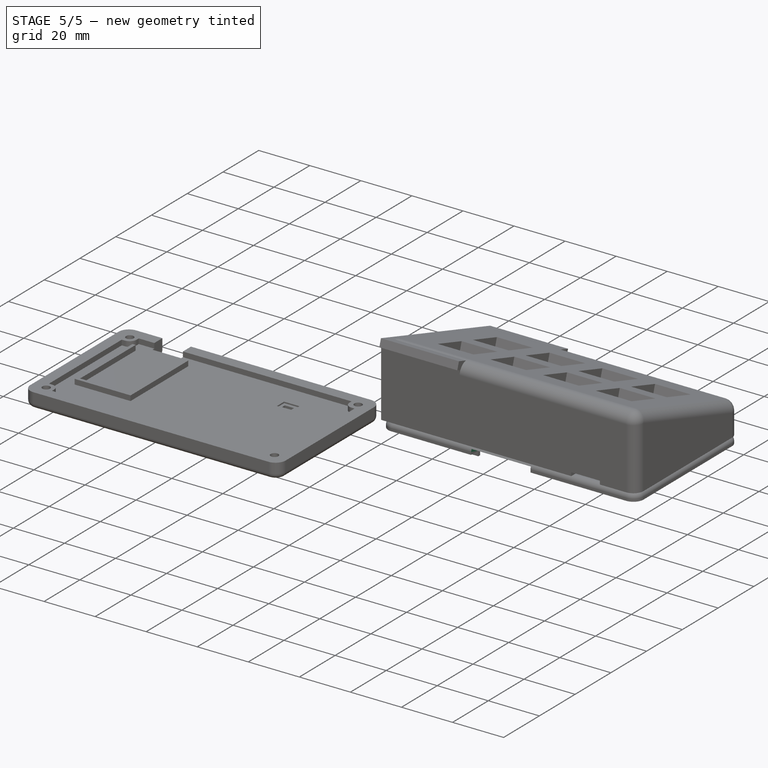
[diagram: stage 5 of 5 — iso view after this stage's code; geometry added in this stage tinted green]
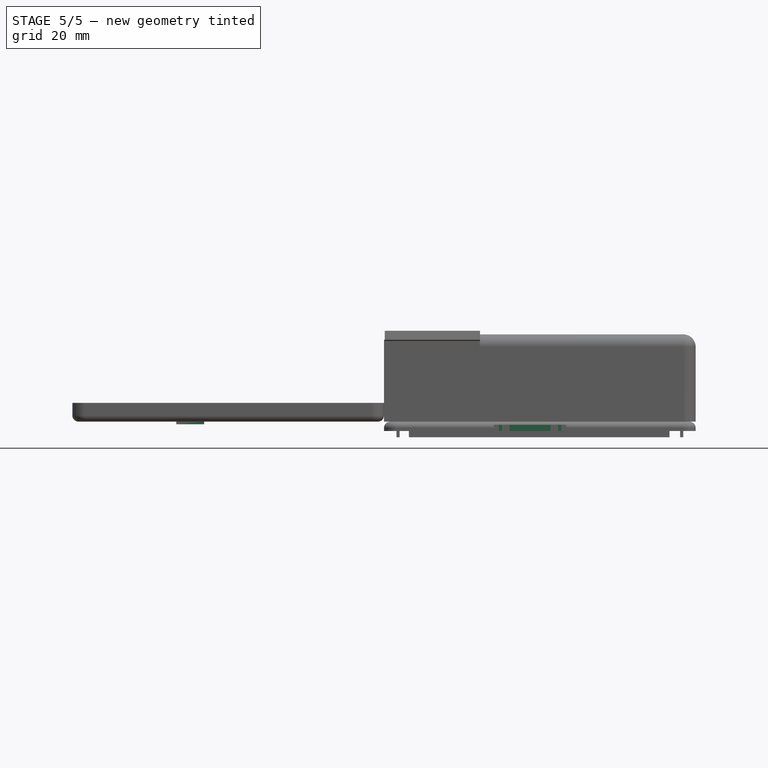
[diagram: stage 5 of 5 — front view after this stage's code; geometry added in this stage tinted green]
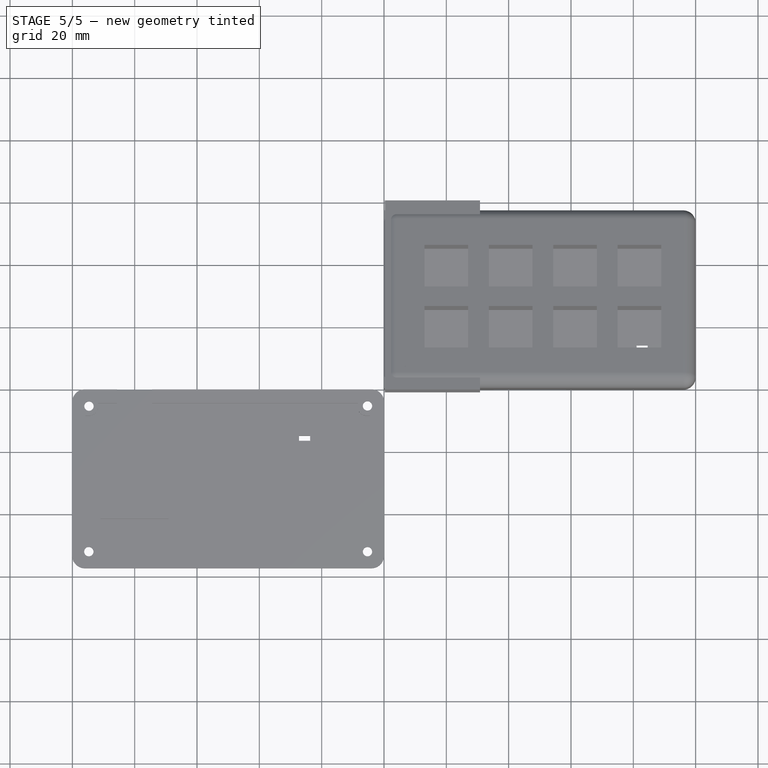
[diagram: stage 5 of 5 — top view after this stage's code; geometry added in this stage tinted green]
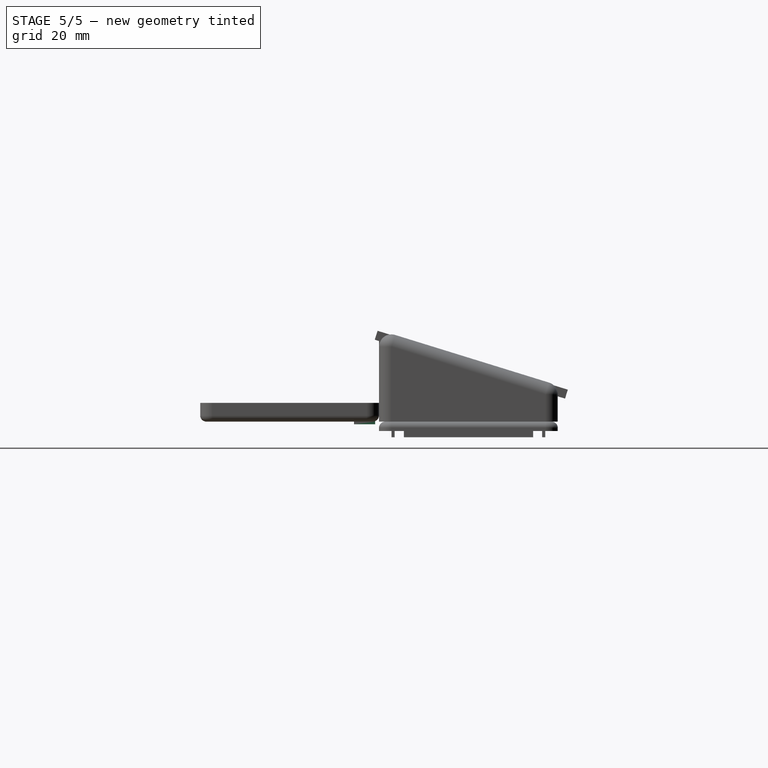
[diagram: stage 5 of 5 — right view after this stage's code; geometry added in this stage tinted green]
FEATURE [Sketcher::SketchObject] Sketch008
  ArcFitTolerance = 1e-06
  AttachmentSupport = -> [Pad002]
  FullyConstrained = false
  MakeInternals = false
  MapMode = 5
  Placement = pos=(0,0,-1) rot=(0.707107,0.707107,0;3.14159rad)
  sketch-geometry (14):
    g0: LineSegment StartX=10.2851 StartY=37.8716 StartZ=0 EndX=39.4866 EndY=37.8716 EndZ=0
    g1: LineSegment StartX=41.8859 StartY=40.2709 StartZ=0 EndX=41.8859 EndY=53.4724 EndZ=0
    g2: LineSegment StartX=39.4866 StartY=55.8716 StartZ=0 EndX=10.2851 EndY=55.8716 EndZ=0
    g3: LineSegment StartX=10.2851 StartY=36.8716 StartZ=0 EndX=39.4866 EndY=36.8716 EndZ=0
    g4: LineSegment StartX=42.8859 StartY=40.2709 StartZ=0 EndX=42.8859 EndY=53.4724 EndZ=0
    g5: LineSegment StartX=39.4866 StartY=56.8716 StartZ=0 EndX=10.2851 EndY=56.8716 EndZ=0
    g6: GeomPoint [constr] X=7.88587 Y=37.8716 Z=0
    g7: GeomPoint [constr] X=41.8859 Y=55.8716 Z=0
    g8: LineSegment StartX=41.8859 StartY=53.4724 StartZ=0 EndX=42.8859 EndY=53.4724 EndZ=0
    g9: LineSegment StartX=42.8859 StartY=40.2709 StartZ=0 EndX=41.8859 EndY=40.2709 EndZ=0
    g10: LineSegment StartX=39.4866 StartY=37.8716 StartZ=0 EndX=39.4866 EndY=36.8716 EndZ=0
    g11: LineSegment StartX=39.4866 StartY=56.8716 StartZ=0 EndX=39.4866 EndY=55.8716 EndZ=0
    g12: LineSegment StartX=10.2851 StartY=56.8716 StartZ=0 EndX=10.2851 EndY=55.8716 EndZ=0
    g13: LineSegment StartX=10.2851 StartY=37.8716 StartZ=0 EndX=10.2851 EndY=36.8716 EndZ=0
  constraints (29):
    c: Horizontal(g0)
    c: Horizontal(g2)
    c: Vertical(g1)
    c: Horizontal(g3)
    c: Horizontal(g5)
    c: Vertical(g4)
    c: PointOnObject(g6,g0)
    c: PointOnObject(g7,g1)
    c: PointOnObject(g7,g2)
    c: Distance(g0,g2) = 18
    c: Distance(g3,g0) = 1
    c: Coincident(g8,g1)
    c: Coincident(g8,g4)
    c: Horizontal(g8)
    c: Coincident(g9,g4)
    c: Coincident(g9,g1)
    c: Horizontal(g9)
    c: Coincident(g10,g0)
    c: Coincident(g10,g3)
    c: Vertical(g10)
    c: Coincident(g11,g5)
    c: Coincident(g11,g2)
    c: Vertical(g11)
    c: Coincident(g12,g5)
    c: Coincident(g12,g2)
    c: Vertical(g12)
    c: Coincident(g13,g0)
    c: Coincident(g13,g3)
    c: Vertical(g13)
FEATURE [PartDesign::Pad] Pad003
  BaseFeature = -> Pad002
  Direction = (0,0,-1)
  Length = 2
  Length2 = 10
  Placement = pos=(0,0,0) rot=(0.707107,0.707107,0;3.14159rad)
  Profile = -> Sketch008
  ReferenceAxis = -> Sketch008 [N_Axis]
  Suppressed = false
  Type = 0
FEATURE [Sketcher::SketchObject] Sketch009
  ArcFitTolerance = 1e-06
  AttachmentSupport = -> [Pad003]
  FullyConstrained = false
  MakeInternals = false
  MapMode = 5
  Placement = pos=(0,0,-5) rot=(0.707107,0.707107,0;3.14159rad)
  sketch-geometry (4):
    g0: LineSegment StartX=-0.924114 StartY=58.4889 StartZ=0 EndX=-0.924114 EndY=35.2524 EndZ=0
    g1: LineSegment StartX=-0.924114 StartY=35.2524 StartZ=0 EndX=6.56755 EndY=35.2524 EndZ=0
    g2: LineSegment StartX=6.56755 StartY=35.2524 StartZ=0 EndX=6.56755 EndY=58.4889 EndZ=0
    g3: LineSegment StartX=6.56755 StartY=58.4889 StartZ=0 EndX=-0.924114 EndY=58.4889 EndZ=0
  constraints (8):
    c: Coincident(g0,g1)
    c: Coincident(g1,g2)
    c: Coincident(g2,g3)
    c: Coincident(g3,g0)
    c: Vertical(g0)
    c: Vertical(g2)
    c: Horizontal(g1)
    c: Horizontal(g3)
FEATURE [PartDesign::Pocket] Pocket003
  BaseFeature = -> Pad003
  Direction = (0,0,1)
  Length = 4
  Length2 = 5
  Placement = pos=(0,0,0) rot=(0.707107,0.707107,0;3.14159rad)
  Profile = -> Sketch009
  ReferenceAxis = -> Sketch009 [N_Axis]
  Suppressed = false
  Type = 0
FEATURE [Sketcher::SketchObject] Sketch010
  ArcFitTolerance = 1e-06
  AttachmentSupport = -> [Pad002]
  FullyConstrained = false
  MakeInternals = false
  MapMode = 5
  Placement = pos=(0,0,-5) rot=(0.707107,0.707107,0;3.14159rad)
  sketch-geometry (16):
    g0: LineSegment StartX=0 StartY=0 StartZ=0 EndX=8 EndY=0 EndZ=0
    g1: LineSegment StartX=8 StartY=0 StartZ=0 EndX=8 EndY=8 EndZ=0
    g2: LineSegment StartX=8 StartY=8 StartZ=0 EndX=0 EndY=8 EndZ=0
    g3: LineSegment StartX=0 StartY=8 StartZ=0 EndX=0 EndY=0 EndZ=0
    g4: LineSegment StartX=57.4652 StartY=0 StartZ=0 EndX=57.4652 EndY=8 EndZ=0
    g5: LineSegment StartX=57.4652 StartY=8 StartZ=0 EndX=49.4652 EndY=8 EndZ=0
    g6: LineSegment StartX=49.4652 StartY=8 StartZ=0 EndX=49.4652 EndY=0 EndZ=0
    g7: LineSegment StartX=49.4652 StartY=0 StartZ=0 EndX=57.4652 EndY=0 EndZ=0
    g8: LineSegment StartX=0 StartY=99.5878 StartZ=0 EndX=0 EndY=91.5878 EndZ=0
    g9: LineSegment StartX=0 StartY=91.5878 StartZ=0 EndX=8 EndY=91.5878 EndZ=0
    g10: LineSegment StartX=8 StartY=91.5878 StartZ=0 EndX=8 EndY=99.5878 EndZ=0
    g11: LineSegment StartX=8 StartY=99.5878 StartZ=0 EndX=0 EndY=99.5878 EndZ=0
    g12: LineSegment StartX=57.4681 StartY=99.5878 StartZ=0 EndX=49.4681 EndY=99.5878 EndZ=0
    g13: LineSegment StartX=49.4681 StartY=99.5878 StartZ=0 EndX=49.4681 EndY=91.5878 EndZ=0
    g14: LineSegment StartX=49.4681 StartY=91.5878 StartZ=0 EndX=57.4681 EndY=91.5878 EndZ=0
    g15: LineSegment StartX=57.4681 StartY=91.5878 StartZ=0 EndX=57.4681 EndY=99.5878 EndZ=0
  constraints (43):
    c: Coincident(g0,g1)
    c: Coincident(g1,g2)
    c: Coincident(g2,g3)
    c: Coincident(g3,g0)
    c: Horizontal(g0)
    c: Horizontal(g2)
    c: Vertical(g1)
    c: Vertical(g3)
    c: Distance(g1,g3) = 8
    c: Distance(g0,g2) = 8
    c: Coincident(g0,g-1)
    c: Coincident(g4,g5)
    c: Coincident(g5,g6)
    c: Coincident(g6,g7)
    c: Coincident(g7,g4)
    c: Vertical(g4)
    c: Vertical(g6)
    c: Horizontal(g5)
    c: Horizontal(g7)
    c: Distance(g4,g6) = 8
    c: Distance(g5,g7) = 8
    c: PointOnObject(g4,g-1)
    c: Coincident(g8,g9)
    c: Coincident(g9,g10)
    c: Coincident(g10,g11)
    c: Coincident(g11,g8)
    c: Vertical(g8)
    c: Vertical(g10)
    c: Horizontal(g9)
    c: Horizontal(g11)
    c: Distance(g8,g10) = 8
    c: Distance(g9,g11) = 8
    c: PointOnObject(g8,g-2)
    c: Coincident(g12,g13)
    c: Coincident(g13,g14)
    c: Coincident(g14,g15)
    c: Coincident(g15,g12)
    c: Horizontal(g12)
    c: Horizontal(g14)
    c: Vertical(g13)
    c: Vertical(g15)
    c: Distance(g13,g15) = 8
    c: Distance(g12,g14) = 8
FEATURE [PartDesign::Pocket] Pocket004
  BaseFeature = -> Pocket003
  Direction = (0,0,1)
  Length = 2
  Length2 = 5
  Placement = pos=(0,0,0) rot=(0.707107,0.707107,0;3.14159rad)
  Profile = -> Sketch010
  ReferenceAxis = -> Sketch010 [N_Axis]
  Suppressed = false
  Type = 0
FEATURE [Sketcher::SketchObject] Sketch011
  ArcFitTolerance = 1e-06
  AttachmentSupport = -> [Pocket004]
  FullyConstrained = false
  MakeInternals = false
  MapMode = 5
  Placement = pos=(0,0,-1) rot=(0.707107,0.707107,0;3.14159rad)
  sketch-geometry (4):
    g0: LineSegment StartX=11.5172 StartY=85.8549 StartZ=0 EndX=11.5172 EndY=79.8549 EndZ=0
    g1: LineSegment StartX=11.5172 StartY=79.8549 StartZ=0 EndX=15.5172 EndY=79.8549 EndZ=0
    g2: LineSegment StartX=15.5172 StartY=79.8549 StartZ=0 EndX=15.5172 EndY=85.8549 EndZ=0
    g3: LineSegment StartX=15.5172 StartY=85.8549 StartZ=0 EndX=11.5172 EndY=85.8549 EndZ=0
  constraints (10):
    c: Coincident(g0,g1)
    c: Coincident(g1,g2)
    c: Coincident(g2,g3)
    c: Coincident(g3,g0)
    c: Vertical(g0)
    c: Vertical(g2)
    c: Horizontal(g1)
    c: Horizontal(g3)
    c: Distance(g0,g2) = 4
    c: Distance(g1,g3) = 6
FEATURE [PartDesign::Pocket] Pocket005
  BaseFeature = -> Pocket004
  Direction = (0,0,1)
  Length = 0.5
  Length2 = 5
  Placement = pos=(0,0,0) rot=(0.707107,0.707107,0;3.14159rad)
  Profile = -> Sketch011
  ReferenceAxis = -> Sketch011 [N_Axis]
  Suppressed = false
  Type = 0
FEATURE [Sketcher::SketchObject] Sketch012
  ArcFitTolerance = 1e-06
  AttachmentSupport = -> [Pocket005]
  ExternalGeometry = -> [Pocket005]
  FullyConstrained = false
  MakeInternals = false
  MapMode = 5
  Placement = pos=(0,0,-0.5) rot=(0.707107,0.707107,0;3.14159rad)
  sketch-geometry (16):
    g0: LineSegment [constr] StartX=11.3602 StartY=85.8507 StartZ=0 EndX=11.3602 EndY=79.8007 EndZ=0
    g1: LineSegment [constr] StartX=11.3602 StartY=79.8007 StartZ=0 EndX=15.4647 EndY=79.8007 EndZ=0
    g2: LineSegment [constr] StartX=15.4647 StartY=79.8007 StartZ=0 EndX=15.4647 EndY=85.8507 EndZ=0
    g3: LineSegment [constr] StartX=15.4647 StartY=85.8507 StartZ=0 EndX=11.3602 EndY=85.8507 EndZ=0
    g4: LineSegment [constr] StartX=12.6276 StartY=85.8507 StartZ=0 EndX=12.6276 EndY=84.5756 EndZ=0
    g5: LineSegment [constr] StartX=14.1276 StartY=85.8507 StartZ=0 EndX=14.1276 EndY=84.5756 EndZ=0
    g6: LineSegment [constr] StartX=11.3602 StartY=84.5756 StartZ=0 EndX=12.6276 EndY=84.5756 EndZ=0
    g7: LineSegment [constr] StartX=11.3602 StartY=81.0758 StartZ=0 EndX=12.6625 EndY=81.0758 EndZ=0
    g8: LineSegment [constr] StartX=12.6625 StartY=81.0758 StartZ=0 EndX=12.6625 EndY=79.8007 EndZ=0
    g9: LineSegment [constr] StartX=14.1625 StartY=81.0758 StartZ=0 EndX=14.1625 EndY=79.8007 EndZ=0
    g10: LineSegment [constr] StartX=14.1276 StartY=84.5756 StartZ=0 EndX=15.4647 EndY=84.5756 EndZ=0
    g11: LineSegment [constr] StartX=14.1625 StartY=81.0758 StartZ=0 EndX=15.4647 EndY=81.0758 EndZ=0
    g12: LineSegment StartX=12.6276 StartY=84.5756 StartZ=0 EndX=14.1276 EndY=84.5756 EndZ=0
    g13: LineSegment StartX=14.1276 StartY=84.5756 StartZ=0 EndX=14.1625 EndY=81.0758 EndZ=0
    g14: LineSegment StartX=14.1625 StartY=81.0758 StartZ=0 EndX=12.6625 EndY=81.0758 EndZ=0
    g15: LineSegment StartX=12.6625 StartY=81.0758 StartZ=0 EndX=12.6276 EndY=84.5756 EndZ=0
  constraints (45):
    c: Coincident(g0,g1)
    c: Coincident(g1,g2)
    c: Coincident(g2,g3)
    c: Coincident(g3,g0)
    c: Vertical(g0)
    c: Vertical(g2)
    c: Horizontal(g1)
    c: Horizontal(g3)
    c: PointOnObject(g4,g3)
    c: PointOnObject(g8,g1)
    c: Vertical(g4)
    c: PointOnObject(g5,g3)
    c: PointOnObject(g9,g1)
    c: Vertical(g5)
    c: PointOnObject(g6,g0)
    c: PointOnObject(g10,g2)
    c: Horizontal(g6)
    c: PointOnObject(g7,g0)
    c: PointOnObject(g11,g2)
    c: Horizontal(g7)
    c: PointOnObject(g5,g10)
    c: PointOnObject(g9,g11)
    c: Coincident(g6,g4)
    c: PointOnObject(g10,g5)
    c: Coincident(g7,g8)
    c: PointOnObject(g11,g9)
    c: Coincident(g4,g12)
    c: Coincident(g12,g5)
    c: Horizontal(g12)
    c: Coincident(g12,g13)
    c: Coincident(g13,g9)
    c: Coincident(g13,g14)
    c: Coincident(g14,g7)
    c: Coincident(g14,g15)
    c: Coincident(g15,g12)
    c: Distance(g12) = 1.5
    c: Equal(g12,g14)
    c: Equal(g15,g13)
    c: Distance(g15) = 3.5
    c: Horizontal(g10)
    c: Vertical(g9)
    c: Vertical(g8)
    c: Horizontal(g11)
    c: Equal(g7,g11)
    c: Equal(g5,g9)
FEATURE [PartDesign::Pocket] Pocket006
  BaseFeature = -> Pocket005
  Direction = (0,0,1)
  Length = 5
  Length2 = 5
  Placement = pos=(0,0,0) rot=(0.707107,0.707107,0;3.14159rad)
  Profile = -> Sketch012
  ReferenceAxis = -> Sketch012 [N_Axis]
  Suppressed = false
  Type = 0
FEATURE [Sketcher::SketchObject] Sketch019
  ArcFitTolerance = 1e-06
  AttachmentSupport = -> [Pocket008]
  ExternalGeometry = -> [Pocket008]
  FullyConstrained = false
  MakeInternals = false
  MapMode = 5
  Placement = pos=(0,0,3.5) rot=(0,0,1;0rad)
  sketch-geometry (16):
    g0: LineSegment [constr] StartX=-28.4926 StartY=-13.5688 StartZ=0 EndX=-28.4926 EndY=-17.5688 EndZ=0
    g1: LineSegment [constr] StartX=-28.4926 StartY=-17.5688 StartZ=0 EndX=-22.4926 EndY=-17.5688 EndZ=0
    g2: LineSegment [constr] StartX=-22.4926 StartY=-17.5688 StartZ=0 EndX=-22.4926 EndY=-13.5688 EndZ=0
    g3: LineSegment [constr] StartX=-22.4926 StartY=-13.5688 StartZ=0 EndX=-28.4926 EndY=-13.5688 EndZ=0
    g4: LineSegment [constr] StartX=-28.4926 StartY=-14.8622 StartZ=0 EndX=-27.2926 EndY=-14.8622 EndZ=0
    g5: LineSegment [constr] StartX=-28.4926 StartY=-16.4622 StartZ=0 EndX=-27.2926 EndY=-16.4622 EndZ=0
    g6: LineSegment [constr] StartX=-27.2926 StartY=-13.6558 StartZ=0 EndX=-27.2926 EndY=-14.8622 EndZ=0
    g7: LineSegment [constr] StartX=-23.6926 StartY=-13.6558 StartZ=0 EndX=-23.6926 EndY=-14.8622 EndZ=0
    g8: LineSegment [constr] StartX=-23.6926 StartY=-16.4622 StartZ=0 EndX=-23.6926 EndY=-17.6686 EndZ=0
    g9: LineSegment [constr] StartX=-27.2926 StartY=-16.4622 StartZ=0 EndX=-27.2926 EndY=-17.6686 EndZ=0
    g10: LineSegment [constr] StartX=-23.6926 StartY=-14.8622 StartZ=0 EndX=-22.4926 EndY=-14.8622 EndZ=0
    g11: LineSegment [constr] StartX=-23.6926 StartY=-16.4622 StartZ=0 EndX=-22.4926 EndY=-16.4622 EndZ=0
    g12: LineSegment StartX=-27.2926 StartY=-14.8622 StartZ=0 EndX=-23.6926 EndY=-14.8622 EndZ=0
    g13: LineSegment StartX=-23.6926 StartY=-14.8622 StartZ=0 EndX=-23.6926 EndY=-16.4622 EndZ=0
    g14: LineSegment StartX=-23.6926 StartY=-16.4622 StartZ=0 EndX=-27.2926 EndY=-16.4622 EndZ=0
    g15: LineSegment StartX=-27.2926 StartY=-16.4622 StartZ=0 EndX=-27.2926 EndY=-14.8622 EndZ=0
  constraints (46):
    c: Coincident(g0,g1)
    c: Coincident(g1,g2)
    c: Coincident(g2,g3)
    c: Coincident(g3,g0)
    c: Vertical(g0)
    c: Vertical(g2)
    c: Horizontal(g1)
    c: Horizontal(g3)
    c: Coincident(g0,g-4)
    c: Coincident(g1,g-6)
    c: Horizontal(g4)
    c: PointOnObject(g4,g0)
    c: PointOnObject(g10,g2)
    c: PointOnObject(g7,g10)
    c: PointOnObject(g8,g11)
    c: Coincident(g4,g6)
    c: PointOnObject(g10,g7)
    c: Coincident(g5,g9)
    c: PointOnObject(g11,g8)
    c: Coincident(g4,g12)
    c: Coincident(g12,g7)
    c: Horizontal(g12)
    c: Coincident(g12,g13)
    c: Coincident(g13,g8)
    c: Vertical(g13)
    c: Coincident(g13,g14)
    c: Coincident(g14,g5)
    c: Horizontal(g14)
    c: Coincident(g14,g15)
    c: Coincident(g15,g12)
    c: Equal(g12,g14)
    c: Equal(g7,g8)
    c: Equal(g8,g9)
    c: Equal(g9,g6)
    c: Equal(g4,g10)
    c: Equal(g10,g11)
    c: Equal(g11,g5)
    c: Vertical(g9)
    c: Vertical(g8)
    c: Horizontal(g11)
    c: Horizontal(g10)
    c: Vertical(g7)
    c: Vertical(g6)
    c: Distance(g13) = 1.6
    c: Horizontal(g5)
    c: Distance(g12) = 3.6
FEATURE [Sketcher::SketchObject] Sketch020
  ArcFitTolerance = 1e-06
  AttachmentSupport = -> [XY_Plane004]
  FullyConstrained = false
  MakeInternals = false
  MapMode = 5
  sketch-geometry (4):
    g0: LineSegment StartX=-71.0728 StartY=-1.23556 StartZ=0 EndX=-71.0728 EndY=-34.2356 EndZ=0
    g1: LineSegment StartX=-71.0728 StartY=-34.2356 StartZ=0 EndX=-53.2928 EndY=-34.2356 EndZ=0
    g2: LineSegment StartX=-53.2928 StartY=-34.2356 StartZ=0 EndX=-53.2928 EndY=-1.23556 EndZ=0
    g3: LineSegment StartX=-53.2928 StartY=-1.23556 StartZ=0 EndX=-71.0728 EndY=-1.23556 EndZ=0
  constraints (10):
    c: Coincident(g0,g1)
    c: Coincident(g1,g2)
    c: Coincident(g2,g3)
    c: Coincident(g3,g0)
    c: Vertical(g0)
    c: Vertical(g2)
    c: Horizontal(g1)
    c: Horizontal(g3)
    c: Distance(g2) = 33
    c: Distance(g1) = 17.78
FEATURE [PartDesign::Pad] Pad006
  Direction = (0,0,1)
  Length = 1.5
  Length2 = 10
  Profile = -> Sketch020
  ReferenceAxis = -> Sketch020 [N_Axis]
  Suppressed = false
  Type = 0
FEATURE [Sketcher::SketchObject] Sketch021
  ArcFitTolerance = 1e-06
  AttachmentSupport = -> [Pad006]
  ExternalGeometry = -> [Pad006]
  FullyConstrained = false
  MakeInternals = false
  MapMode = 5
  Placement = pos=(0,-1.23556,0) rot=(0,0.707107,0.707107;3.14159rad)
  sketch-geometry (11):
    g0: LineSegment [constr] StartX=57.7128 StartY=1.5 StartZ=0 EndX=53.2928 EndY=1.5 EndZ=0
    g1: LineSegment [constr] StartX=66.6528 StartY=1.5 StartZ=0 EndX=71.0728 EndY=1.5 EndZ=0
    g2: LineSegment [constr] StartX=57.7128 StartY=0 StartZ=0 EndX=57.7128 EndY=0 EndZ=0
    g3: LineSegment [constr] StartX=57.7128 StartY=0 StartZ=0 EndX=53.2928 EndY=0 EndZ=0
    g4: LineSegment [constr] StartX=53.2928 StartY=1.5 StartZ=0 EndX=53.2928 EndY=0 EndZ=0
    g5: LineSegment [constr] StartX=71.0728 StartY=1.5 StartZ=0 EndX=71.0728 EndY=0 EndZ=0
    g6: LineSegment [constr] StartX=71.0728 StartY=0 StartZ=0 EndX=66.6528 EndY=0 EndZ=0
    g7: LineSegment StartX=57.7128 StartY=2.355 StartZ=0 EndX=66.6528 EndY=2.355 EndZ=0
    g8: LineSegment StartX=57.7128 StartY=-0.855 StartZ=0 EndX=66.6528 EndY=-0.855 EndZ=0
    g9: LineSegment StartX=57.7128 StartY=-0.855 StartZ=0 EndX=57.7128 EndY=2.355 EndZ=0
    g10: LineSegment StartX=66.6528 StartY=-0.855 StartZ=0 EndX=66.6528 EndY=2.355 EndZ=0
  constraints (20):
    c: Horizontal(g0)
    c: Horizontal(g1)
    c: Horizontal(g2)
    c: Coincident(g1,g5)
    c: Coincident(g5,g-5)
    c: Vertical(g5)
    c: Coincident(g5,g6)
    c: Horizontal(g6)
    c: Equal(g0,g1)
    c: Coincident(g0,g4)
    c: Vertical(g4)
    c: Coincident(g4,g3)
    c: Coincident(g3,g-4)
    c: Horizontal(g7)
    c: Coincident(g9,g8)
    c: Coincident(g9,g7)
    c: Vertical(g9)
    c: Coincident(g10,g8)
    c: Coincident(g10,g7)
    c: Vertical(g10)
FEATURE [PartDesign::Pad] Pad007
  BaseFeature = -> Pad006
  Direction = (0,1,-2e-16)
  Length = 6.8
  Length2 = 10
  Profile = -> Sketch021
  ReferenceAxis = -> Sketch021 [N_Axis]
  Reversed = true
  Suppressed = false
  Type = 0
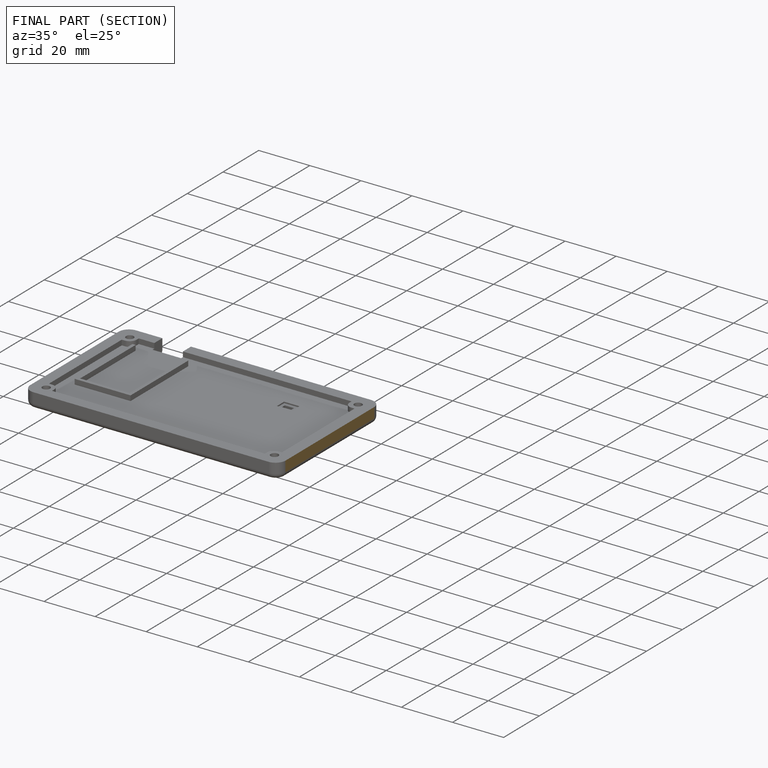
[diagram: finished part — half-section view (interior)]
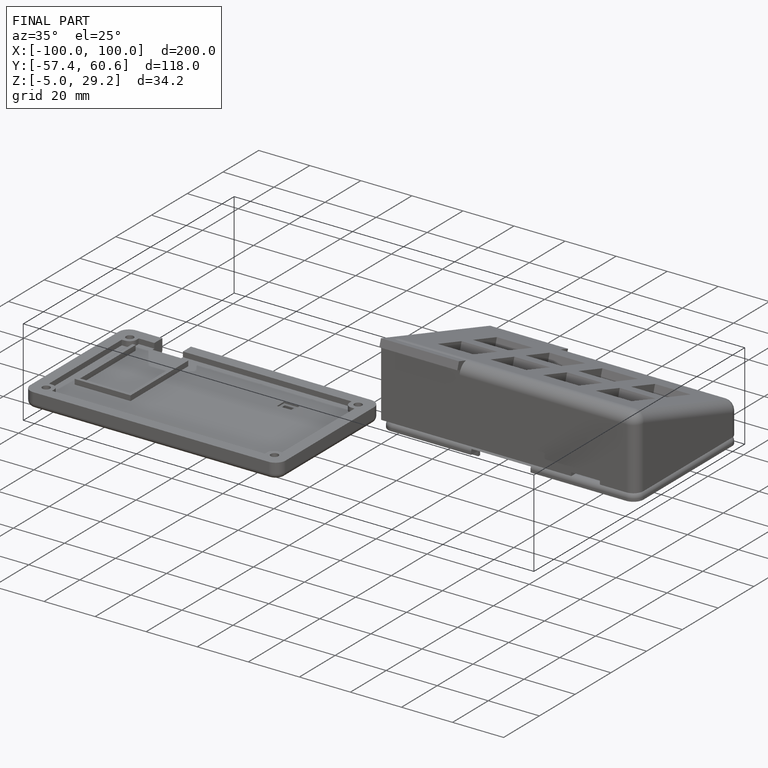
[diagram: finished part — iso view with bounding-box wireframe]
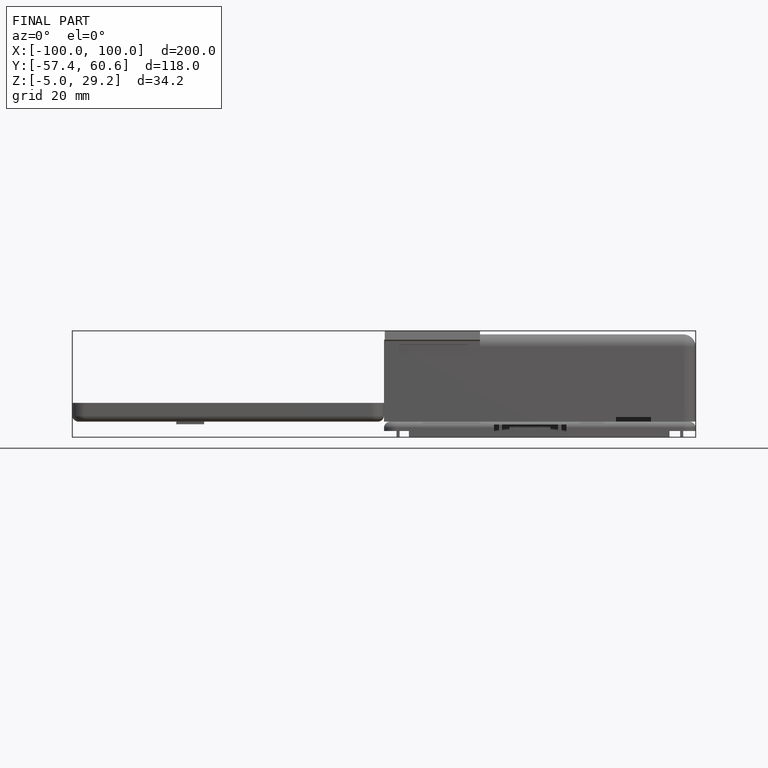
[diagram: finished part — front view with bounding-box wireframe]
